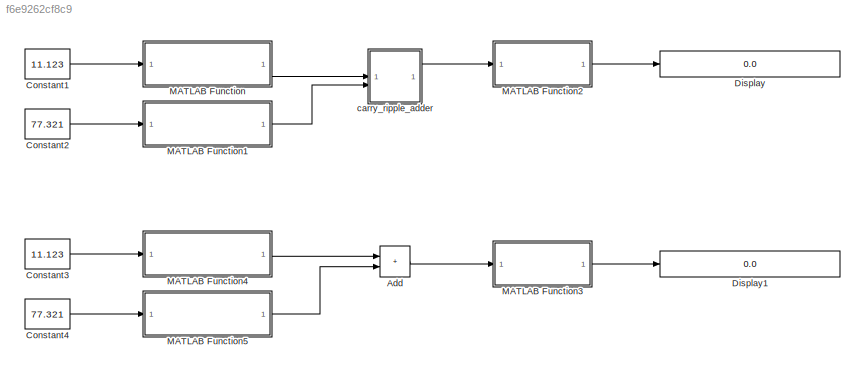
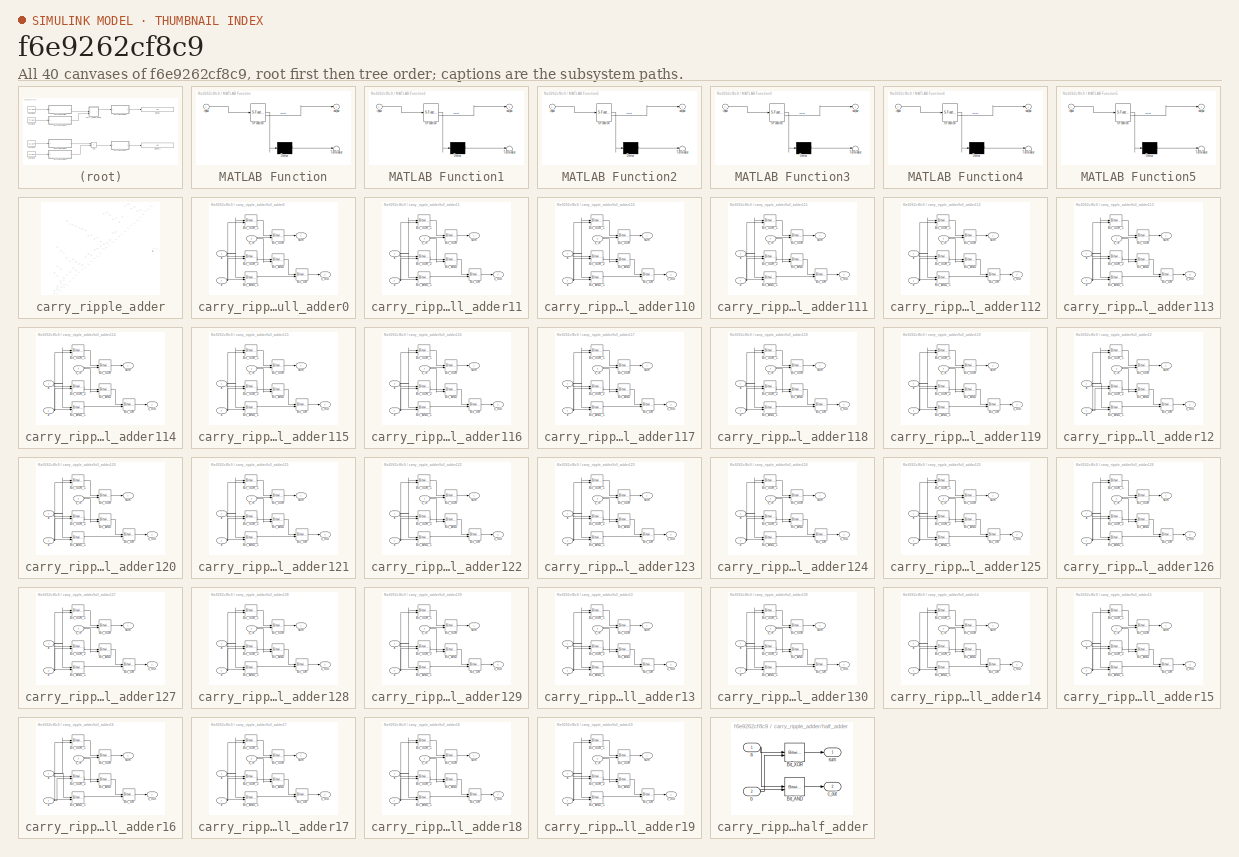
[diagram: thumbnail index - all 40 canvases of the model, root first then tree order]
MODEL slx_f6e9262cf8c9
KIND model
CONFIG AbsTol = auto
CONFIG EnableMultiTasking = off
CONFIG FixedStep = auto
CONFIG MaxStep = auto
CONFIG MinStep = auto
CONFIG PreLoadFcn = addpath('<path>');\n
CONFIG RelTol = 1e-3
CONFIG SampleTimeConstraint = Unconstrained
CONFIG SolverName = FixedStepDiscrete
CONFIG StartTime = 0.0
CONFIG StopTime = 10
BLOCK [Sum] Add
  IconShape = rectangular
BLOCK [Constant] Constant1
  OutDataTypeStr = fixdt(1,32,8)
  Value = 11.123
BLOCK [Constant] Constant2
  OutDataTypeStr = fixdt(1,32,8)
  Value = 77.321
BLOCK [Constant] Constant3
  OutDataTypeStr = fixdt(1,32,8)
  Value = 11.123
BLOCK [Constant] Constant4
  OutDataTypeStr = fixdt(1,32,8)
  Value = 77.321
BLOCK [Display] Display
  Decimation = 1
  Format = long
BLOCK [Display] Display1
  Decimation = 1
  Format = long
BLOCK [SubSystem] MATLAB Function
  ErrorFcn = Stateflow.Translate.translate
  LibrarySourceBlock = simulink/User-Defined\nFunctions/MATLAB Function
  PermitHierarchicalResolution = ExplicitOnly
  SFBlockType = MATLAB Function
  TreatAsAtomicUnit = on
BLOCK [Demux] MATLAB Function/ Demux 
  Outputs = 1
BLOCK [S-Function] MATLAB Function/ SFunction 
  EnableBusSupport = on
  FunctionName = sf_sfun
  PortCounts = [1 2]
  SFcnIsStateOwnerBlock = off
  SFunctionDeploymentMode = off
  Tag = Stateflow S-Function 2
BLOCK [Terminator] MATLAB Function/ Terminator 
BLOCK [Inport] MATLAB Function/input
BLOCK [Outport] MATLAB Function/output
BLOCK [SubSystem] MATLAB Function1
  ErrorFcn = Stateflow.Translate.translate
  LibrarySourceBlock = simulink/User-Defined\nFunctions/MATLAB Function
  PermitHierarchicalResolution = ExplicitOnly
  SFBlockType = MATLAB Function
  TreatAsAtomicUnit = on
BLOCK [Demux] MATLAB Function1/ Demux 
  Outputs = 1
BLOCK [S-Function] MATLAB Function1/ SFunction 
  EnableBusSupport = on
  FunctionName = sf_sfun
  PortCounts = [1 2]
  SFcnIsStateOwnerBlock = off
  SFunctionDeploymentMode = off
  Tag = Stateflow S-Function 1
BLOCK [Terminator] MATLAB Function1/ Terminator 
BLOCK [Inport] MATLAB Function1/input
BLOCK [Outport] MATLAB Function1/output
BLOCK [SubSystem] MATLAB Function2
  ErrorFcn = Stateflow.Translate.translate
  LibrarySourceBlock = simulink/User-Defined\nFunctions/MATLAB Function
  PermitHierarchicalResolution = ExplicitOnly
  SFBlockType = MATLAB Function
  TreatAsAtomicUnit = on
BLOCK [Demux] MATLAB Function2/ Demux 
  Outputs = 1
BLOCK [S-Function] MATLAB Function2/ SFunction 
  EnableBusSupport = on
  FunctionName = sf_sfun
  PortCounts = [1 2]
  SFcnIsStateOwnerBlock = off
  SFunctionDeploymentMode = off
  Tag = Stateflow S-Function 3
BLOCK [Terminator] MATLAB Function2/ Terminator 
BLOCK [Inport] MATLAB Function2/input
BLOCK [Outport] MATLAB Function2/output
BLOCK [SubSystem] MATLAB Function3
  ErrorFcn = Stateflow.Translate.translate
  LibrarySourceBlock = simulink/User-Defined\nFunctions/MATLAB Function
  PermitHierarchicalResolution = ExplicitOnly
  SFBlockType = MATLAB Function
  TreatAsAtomicUnit = on
BLOCK [Demux] MATLAB Function3/ Demux 
  Outputs = 1
BLOCK [S-Function] MATLAB Function3/ SFunction 
  EnableBusSupport = on
  FunctionName = sf_sfun
  PortCounts = [1 2]
  SFcnIsStateOwnerBlock = off
  SFunctionDeploymentMode = off
  Tag = Stateflow S-Function 4
BLOCK [Terminator] MATLAB Function3/ Terminator 
BLOCK [Inport] MATLAB Function3/input
BLOCK [Outport] MATLAB Function3/output
BLOCK [SubSystem] MATLAB Function4
  ErrorFcn = Stateflow.Translate.translate
  LibrarySourceBlock = simulink/User-Defined\nFunctions/MATLAB Function
  PermitHierarchicalResolution = ExplicitOnly
  SFBlockType = MATLAB Function
  TreatAsAtomicUnit = on
BLOCK [Demux] MATLAB Function4/ Demux 
  Outputs = 1
BLOCK [S-Function] MATLAB Function4/ SFunction 
  EnableBusSupport = on
  FunctionName = sf_sfun
  PortCounts = [1 2]
  SFcnIsStateOwnerBlock = off
  SFunctionDeploymentMode = off
  Tag = Stateflow S-Function 5
BLOCK [Terminator] MATLAB Function4/ Terminator 
BLOCK [Inport] MATLAB Function4/input
BLOCK [Outport] MATLAB Function4/output
BLOCK [SubSystem] MATLAB Function5
  ErrorFcn = Stateflow.Translate.translate
  LibrarySourceBlock = simulink/User-Defined\nFunctions/MATLAB Function
  PermitHierarchicalResolution = ExplicitOnly
  SFBlockType = MATLAB Function
  TreatAsAtomicUnit = on
BLOCK [Demux] MATLAB Function5/ Demux 
  Outputs = 1
BLOCK [S-Function] MATLAB Function5/ SFunction 
  EnableBusSupport = on
  FunctionName = sf_sfun
  PortCounts = [1 2]
  SFcnIsStateOwnerBlock = off
  SFunctionDeploymentMode = off
  Tag = Stateflow S-Function 6
BLOCK [Terminator] MATLAB Function5/ Terminator 
BLOCK [Inport] MATLAB Function5/input
BLOCK [Outport] MATLAB Function5/output
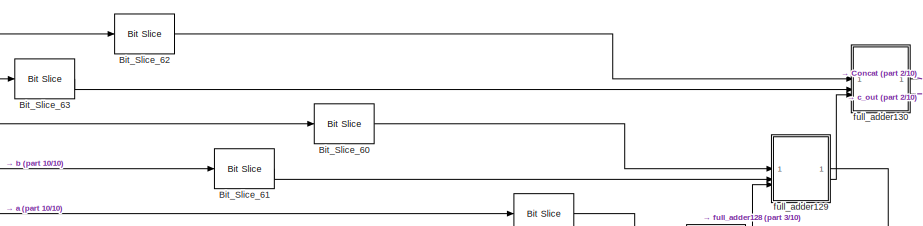
[diagram: carry_ripple_adder - part 1/10, top right region]
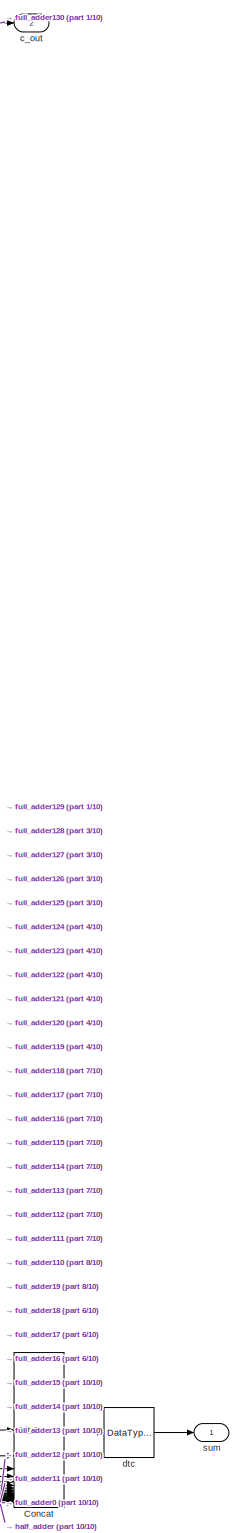
[diagram: carry_ripple_adder - part 2/10, top right region]
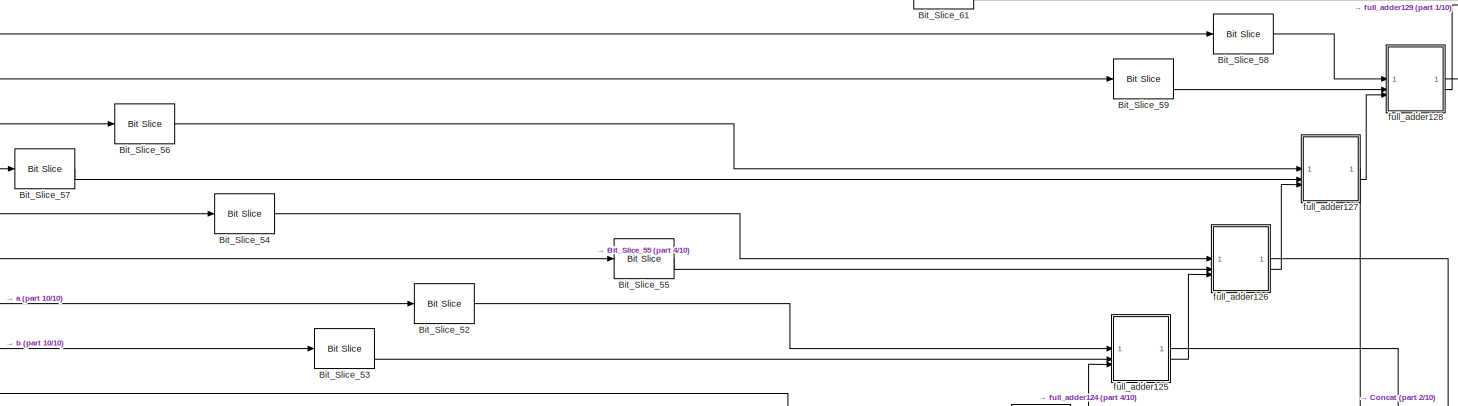
[diagram: carry_ripple_adder - part 3/10, top right region]
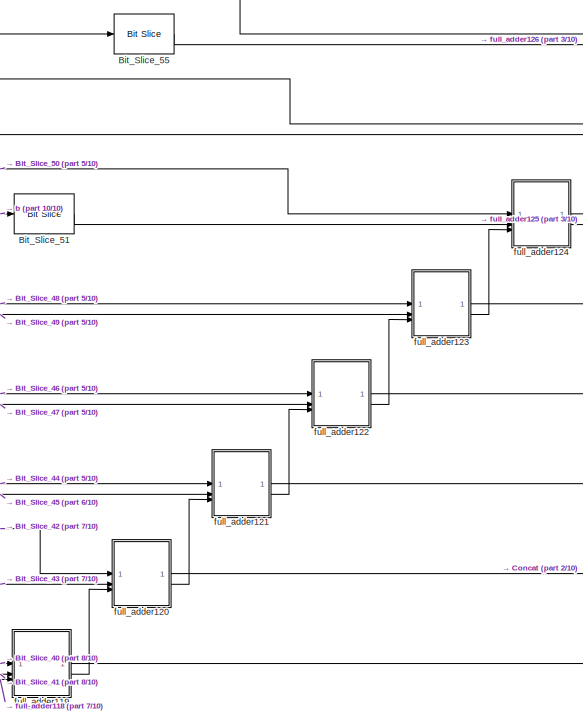
[diagram: carry_ripple_adder - part 4/10, top right region]
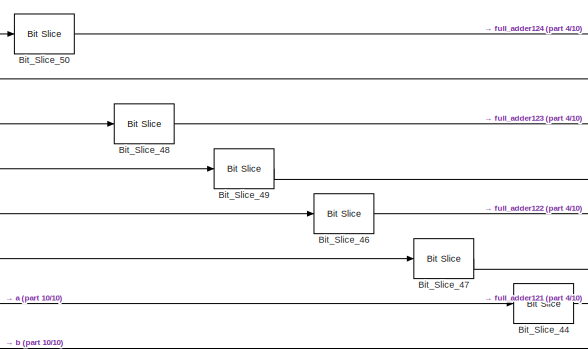
[diagram: carry_ripple_adder - part 5/10, top left region]
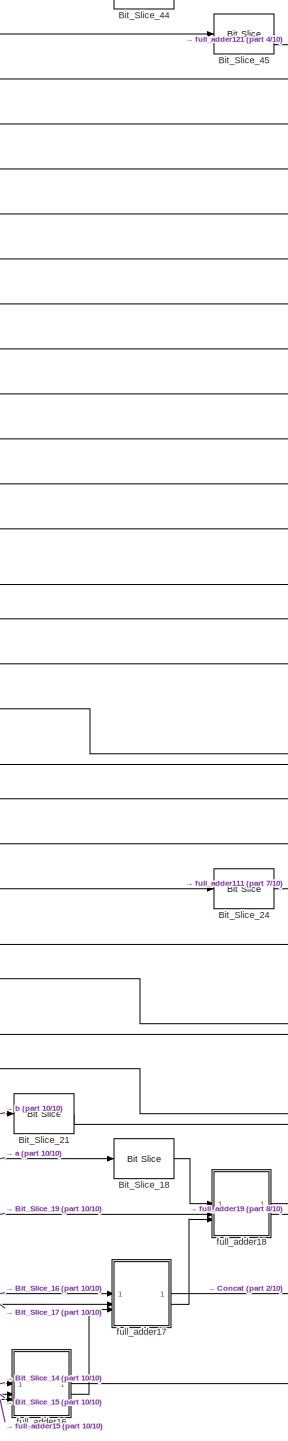
[diagram: carry_ripple_adder - part 6/10, central region]
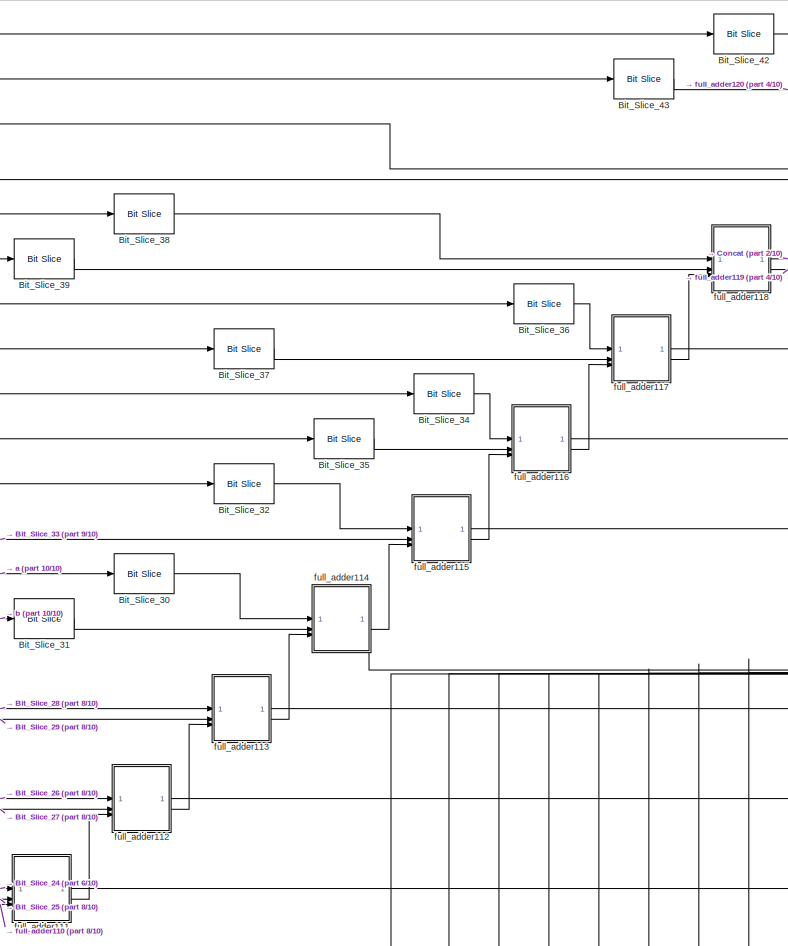
[diagram: carry_ripple_adder - part 7/10, central region]
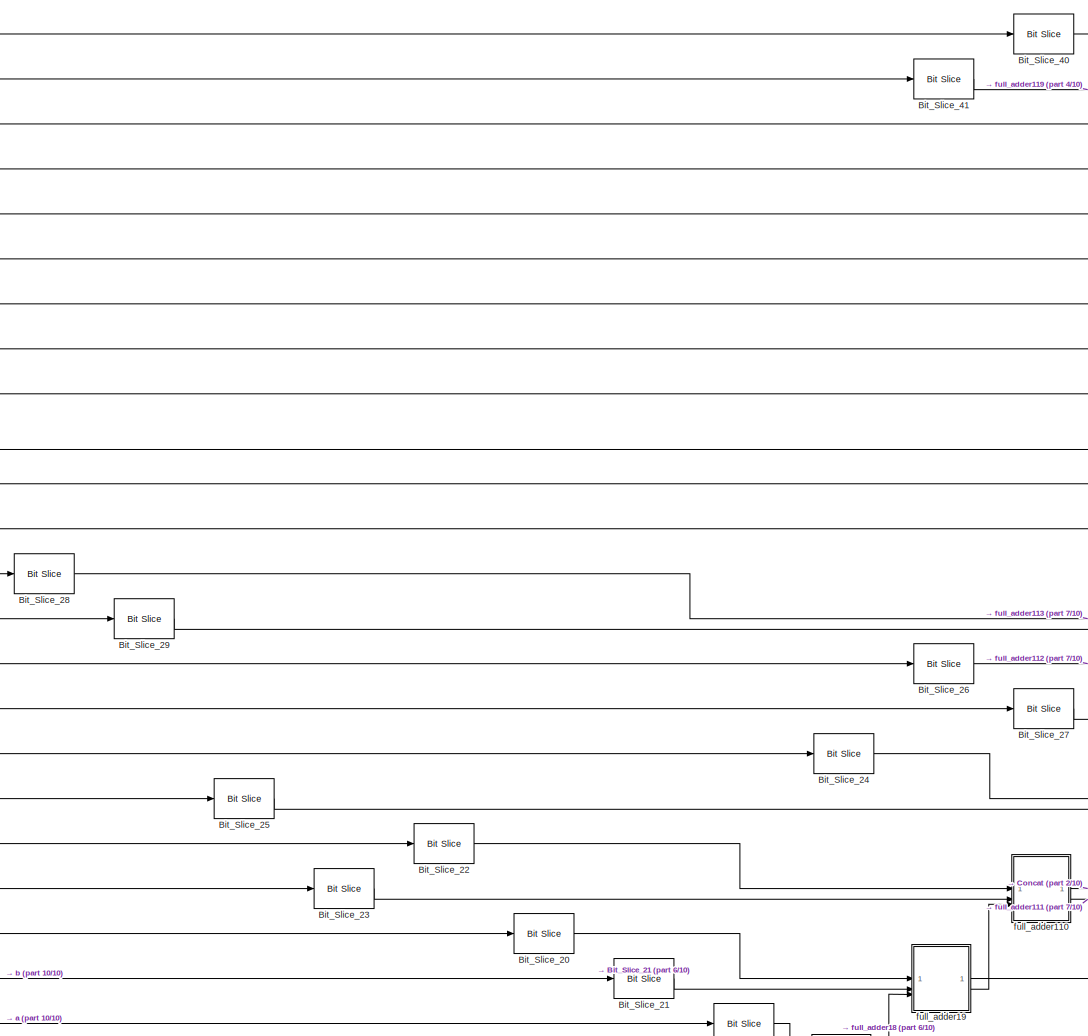
[diagram: carry_ripple_adder - part 8/10, middle left region]
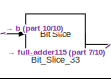
[diagram: carry_ripple_adder - part 9/10, middle left region]
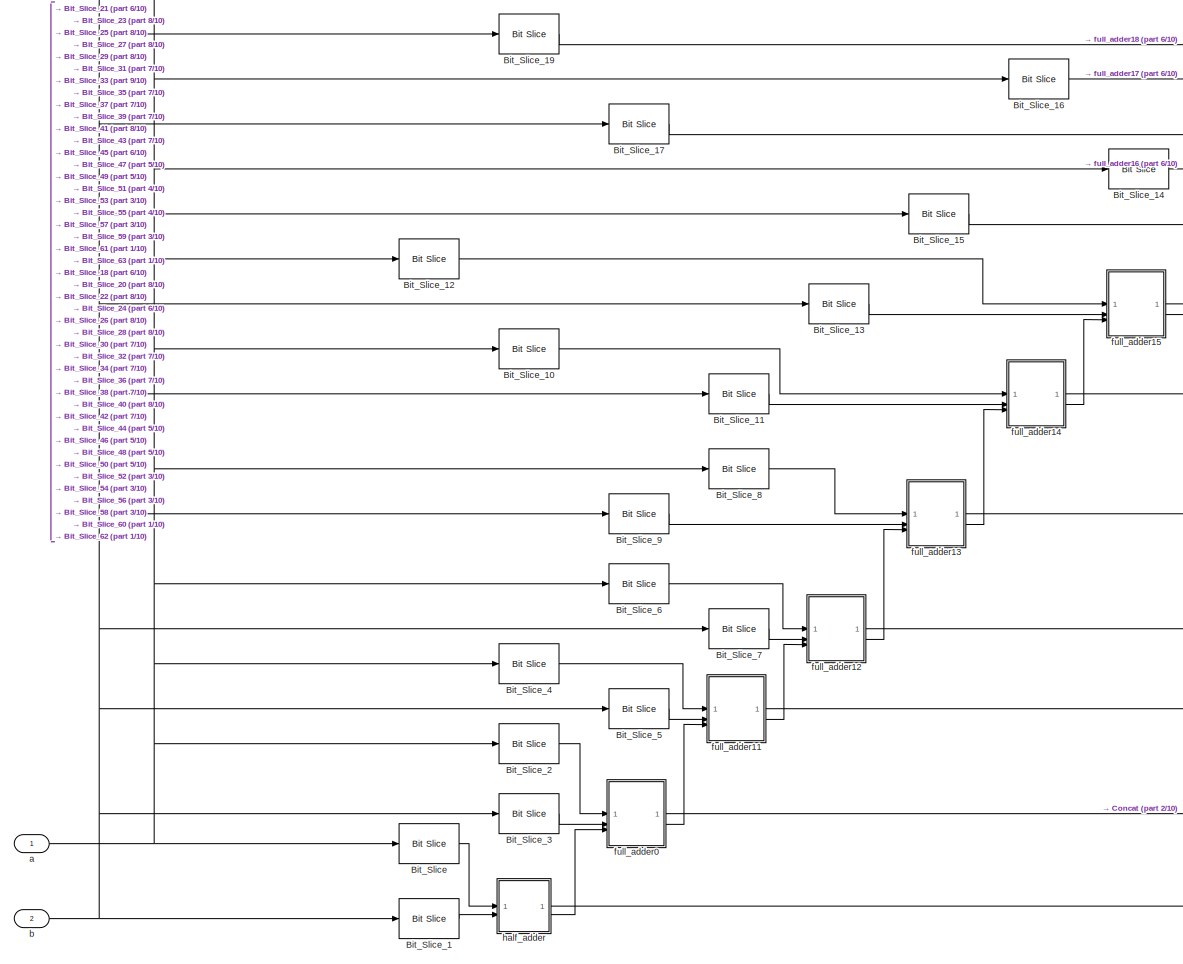
[diagram: carry_ripple_adder - part 10/10, bottom left region]
BLOCK [SubSystem] carry_ripple_adder
BLOCK [Reference] carry_ripple_adder/Bit_Slice  REF=hdlsllib/Logic and Bit
Operations/Bit Slice
  SourceBlock = hdlsllib/Logic and Bit\nOperations/Bit Slice
  SourceType = Bit Slice
BLOCK [Reference] carry_ripple_adder/Bit_Slice_1  REF=hdlsllib/Logic and Bit
Operations/Bit Slice
  SourceBlock = hdlsllib/Logic and Bit\nOperations/Bit Slice
  SourceType = Bit Slice
BLOCK [Reference] carry_ripple_adder/Bit_Slice_10  REF=hdlsllib/Logic and Bit
Operations/Bit Slice
  SourceBlock = hdlsllib/Logic and Bit\nOperations/Bit Slice
  SourceType = Bit Slice
BLOCK [Reference] carry_ripple_adder/Bit_Slice_11  REF=hdlsllib/Logic and Bit
Operations/Bit Slice
  SourceBlock = hdlsllib/Logic and Bit\nOperations/Bit Slice
  SourceType = Bit Slice
BLOCK [Reference] carry_ripple_adder/Bit_Slice_12  REF=hdlsllib/Logic and Bit
Operations/Bit Slice
  SourceBlock = hdlsllib/Logic and Bit\nOperations/Bit Slice
  SourceType = Bit Slice
BLOCK [Reference] carry_ripple_adder/Bit_Slice_13  REF=hdlsllib/Logic and Bit
Operations/Bit Slice
  SourceBlock = hdlsllib/Logic and Bit\nOperations/Bit Slice
  SourceType = Bit Slice
BLOCK [Reference] carry_ripple_adder/Bit_Slice_14  REF=hdlsllib/Logic and Bit
Operations/Bit Slice
  SourceBlock = hdlsllib/Logic and Bit\nOperations/Bit Slice
  SourceType = Bit Slice
BLOCK [Reference] carry_ripple_adder/Bit_Slice_15  REF=hdlsllib/Logic and Bit
Operations/Bit Slice
  SourceBlock = hdlsllib/Logic and Bit\nOperations/Bit Slice
  SourceType = Bit Slice
BLOCK [Reference] carry_ripple_adder/Bit_Slice_16  REF=hdlsllib/Logic and Bit
Operations/Bit Slice
  SourceBlock = hdlsllib/Logic and Bit\nOperations/Bit Slice
  SourceType = Bit Slice
BLOCK [Reference] carry_ripple_adder/Bit_Slice_17  REF=hdlsllib/Logic and Bit
Operations/Bit Slice
  SourceBlock = hdlsllib/Logic and Bit\nOperations/Bit Slice
  SourceType = Bit Slice
BLOCK [Reference] carry_ripple_adder/Bit_Slice_18  REF=hdlsllib/Logic and Bit
Operations/Bit Slice
  SourceBlock = hdlsllib/Logic and Bit\nOperations/Bit Slice
  SourceType = Bit Slice
BLOCK [Reference] carry_ripple_adder/Bit_Slice_19  REF=hdlsllib/Logic and Bit
Operations/Bit Slice
  SourceBlock = hdlsllib/Logic and Bit\nOperations/Bit Slice
  SourceType = Bit Slice
BLOCK [Reference] carry_ripple_adder/Bit_Slice_2  REF=hdlsllib/Logic and Bit
Operations/Bit Slice
  SourceBlock = hdlsllib/Logic and Bit\nOperations/Bit Slice
  SourceType = Bit Slice
BLOCK [Reference] carry_ripple_adder/Bit_Slice_20  REF=hdlsllib/Logic and Bit
Operations/Bit Slice
  SourceBlock = hdlsllib/Logic and Bit\nOperations/Bit Slice
  SourceType = Bit Slice
BLOCK [Reference] carry_ripple_adder/Bit_Slice_21  REF=hdlsllib/Logic and Bit
Operations/Bit Slice
  SourceBlock = hdlsllib/Logic and Bit\nOperations/Bit Slice
  SourceType = Bit Slice
BLOCK [Reference] carry_ripple_adder/Bit_Slice_22  REF=hdlsllib/Logic and Bit
Operations/Bit Slice
  SourceBlock = hdlsllib/Logic and Bit\nOperations/Bit Slice
  SourceType = Bit Slice
BLOCK [Reference] carry_ripple_adder/Bit_Slice_23  REF=hdlsllib/Logic and Bit
Operations/Bit Slice
  SourceBlock = hdlsllib/Logic and Bit\nOperations/Bit Slice
  SourceType = Bit Slice
BLOCK [Reference] carry_ripple_adder/Bit_Slice_24  REF=hdlsllib/Logic and Bit
Operations/Bit Slice
  SourceBlock = hdlsllib/Logic and Bit\nOperations/Bit Slice
  SourceType = Bit Slice
BLOCK [Reference] carry_ripple_adder/Bit_Slice_25  REF=hdlsllib/Logic and Bit
Operations/Bit Slice
  SourceBlock = hdlsllib/Logic and Bit\nOperations/Bit Slice
  SourceType = Bit Slice
BLOCK [Reference] carry_ripple_adder/Bit_Slice_26  REF=hdlsllib/Logic and Bit
Operations/Bit Slice
  SourceBlock = hdlsllib/Logic and Bit\nOperations/Bit Slice
  SourceType = Bit Slice
BLOCK [Reference] carry_ripple_adder/Bit_Slice_27  REF=hdlsllib/Logic and Bit
Operations/Bit Slice
  SourceBlock = hdlsllib/Logic and Bit\nOperations/Bit Slice
  SourceType = Bit Slice
BLOCK [Reference] carry_ripple_adder/Bit_Slice_28  REF=hdlsllib/Logic and Bit
Operations/Bit Slice
  SourceBlock = hdlsllib/Logic and Bit\nOperations/Bit Slice
  SourceType = Bit Slice
BLOCK [Reference] carry_ripple_adder/Bit_Slice_29  REF=hdlsllib/Logic and Bit
Operations/Bit Slice
  SourceBlock = hdlsllib/Logic and Bit\nOperations/Bit Slice
  SourceType = Bit Slice
BLOCK [Reference] carry_ripple_adder/Bit_Slice_3  REF=hdlsllib/Logic and Bit
Operations/Bit Slice
  SourceBlock = hdlsllib/Logic and Bit\nOperations/Bit Slice
  SourceType = Bit Slice
BLOCK [Reference] carry_ripple_adder/Bit_Slice_30  REF=hdlsllib/Logic and Bit
Operations/Bit Slice
  SourceBlock = hdlsllib/Logic and Bit\nOperations/Bit Slice
  SourceType = Bit Slice
BLOCK [Reference] carry_ripple_adder/Bit_Slice_31  REF=hdlsllib/Logic and Bit
Operations/Bit Slice
  SourceBlock = hdlsllib/Logic and Bit\nOperations/Bit Slice
  SourceType = Bit Slice
BLOCK [Reference] carry_ripple_adder/Bit_Slice_32  REF=hdlsllib/Logic and Bit
Operations/Bit Slice
  SourceBlock = hdlsllib/Logic and Bit\nOperations/Bit Slice
  SourceType = Bit Slice
BLOCK [Reference] carry_ripple_adder/Bit_Slice_33  REF=hdlsllib/Logic and Bit
Operations/Bit Slice
  SourceBlock = hdlsllib/Logic and Bit\nOperations/Bit Slice
  SourceType = Bit Slice
BLOCK [Reference] carry_ripple_adder/Bit_Slice_34  REF=hdlsllib/Logic and Bit
Operations/Bit Slice
  SourceBlock = hdlsllib/Logic and Bit\nOperations/Bit Slice
  SourceType = Bit Slice
BLOCK [Reference] carry_ripple_adder/Bit_Slice_35  REF=hdlsllib/Logic and Bit
Operations/Bit Slice
  SourceBlock = hdlsllib/Logic and Bit\nOperations/Bit Slice
  SourceType = Bit Slice
BLOCK [Reference] carry_ripple_adder/Bit_Slice_36  REF=hdlsllib/Logic and Bit
Operations/Bit Slice
  SourceBlock = hdlsllib/Logic and Bit\nOperations/Bit Slice
  SourceType = Bit Slice
BLOCK [Reference] carry_ripple_adder/Bit_Slice_37  REF=hdlsllib/Logic and Bit
Operations/Bit Slice
  SourceBlock = hdlsllib/Logic and Bit\nOperations/Bit Slice
  SourceType = Bit Slice
BLOCK [Reference] carry_ripple_adder/Bit_Slice_38  REF=hdlsllib/Logic and Bit
Operations/Bit Slice
  SourceBlock = hdlsllib/Logic and Bit\nOperations/Bit Slice
  SourceType = Bit Slice
BLOCK [Reference] carry_ripple_adder/Bit_Slice_39  REF=hdlsllib/Logic and Bit
Operations/Bit Slice
  SourceBlock = hdlsllib/Logic and Bit\nOperations/Bit Slice
  SourceType = Bit Slice
BLOCK [Reference] carry_ripple_adder/Bit_Slice_4  REF=hdlsllib/Logic and Bit
Operations/Bit Slice
  SourceBlock = hdlsllib/Logic and Bit\nOperations/Bit Slice
  SourceType = Bit Slice
BLOCK [Reference] carry_ripple_adder/Bit_Slice_40  REF=hdlsllib/Logic and Bit
Operations/Bit Slice
  SourceBlock = hdlsllib/Logic and Bit\nOperations/Bit Slice
  SourceType = Bit Slice
BLOCK [Reference] carry_ripple_adder/Bit_Slice_41  REF=hdlsllib/Logic and Bit
Operations/Bit Slice
  SourceBlock = hdlsllib/Logic and Bit\nOperations/Bit Slice
  SourceType = Bit Slice
BLOCK [Reference] carry_ripple_adder/Bit_Slice_42  REF=hdlsllib/Logic and Bit
Operations/Bit Slice
  SourceBlock = hdlsllib/Logic and Bit\nOperations/Bit Slice
  SourceType = Bit Slice
BLOCK [Reference] carry_ripple_adder/Bit_Slice_43  REF=hdlsllib/Logic and Bit
Operations/Bit Slice
  SourceBlock = hdlsllib/Logic and Bit\nOperations/Bit Slice
  SourceType = Bit Slice
BLOCK [Reference] carry_ripple_adder/Bit_Slice_44  REF=hdlsllib/Logic and Bit
Operations/Bit Slice
  SourceBlock = hdlsllib/Logic and Bit\nOperations/Bit Slice
  SourceType = Bit Slice
BLOCK [Reference] carry_ripple_adder/Bit_Slice_45  REF=hdlsllib/Logic and Bit
Operations/Bit Slice
  SourceBlock = hdlsllib/Logic and Bit\nOperations/Bit Slice
  SourceType = Bit Slice
BLOCK [Reference] carry_ripple_adder/Bit_Slice_46  REF=hdlsllib/Logic and Bit
Operations/Bit Slice
  SourceBlock = hdlsllib/Logic and Bit\nOperations/Bit Slice
  SourceType = Bit Slice
BLOCK [Reference] carry_ripple_adder/Bit_Slice_47  REF=hdlsllib/Logic and Bit
Operations/Bit Slice
  SourceBlock = hdlsllib/Logic and Bit\nOperations/Bit Slice
  SourceType = Bit Slice
BLOCK [Reference] carry_ripple_adder/Bit_Slice_48  REF=hdlsllib/Logic and Bit
Operations/Bit Slice
  SourceBlock = hdlsllib/Logic and Bit\nOperations/Bit Slice
  SourceType = Bit Slice
BLOCK [Reference] carry_ripple_adder/Bit_Slice_49  REF=hdlsllib/Logic and Bit
Operations/Bit Slice
  SourceBlock = hdlsllib/Logic and Bit\nOperations/Bit Slice
  SourceType = Bit Slice
BLOCK [Reference] carry_ripple_adder/Bit_Slice_5  REF=hdlsllib/Logic and Bit
Operations/Bit Slice
  SourceBlock = hdlsllib/Logic and Bit\nOperations/Bit Slice
  SourceType = Bit Slice
BLOCK [Reference] carry_ripple_adder/Bit_Slice_50  REF=hdlsllib/Logic and Bit
Operations/Bit Slice
  SourceBlock = hdlsllib/Logic and Bit\nOperations/Bit Slice
  SourceType = Bit Slice
BLOCK [Reference] carry_ripple_adder/Bit_Slice_51  REF=hdlsllib/Logic and Bit
Operations/Bit Slice
  SourceBlock = hdlsllib/Logic and Bit\nOperations/Bit Slice
  SourceType = Bit Slice
BLOCK [Reference] carry_ripple_adder/Bit_Slice_52  REF=hdlsllib/Logic and Bit
Operations/Bit Slice
  SourceBlock = hdlsllib/Logic and Bit\nOperations/Bit Slice
  SourceType = Bit Slice
BLOCK [Reference] carry_ripple_adder/Bit_Slice_53  REF=hdlsllib/Logic and Bit
Operations/Bit Slice
  SourceBlock = hdlsllib/Logic and Bit\nOperations/Bit Slice
  SourceType = Bit Slice
BLOCK [Reference] carry_ripple_adder/Bit_Slice_54  REF=hdlsllib/Logic and Bit
Operations/Bit Slice
  SourceBlock = hdlsllib/Logic and Bit\nOperations/Bit Slice
  SourceType = Bit Slice
BLOCK [Reference] carry_ripple_adder/Bit_Slice_55  REF=hdlsllib/Logic and Bit
Operations/Bit Slice
  SourceBlock = hdlsllib/Logic and Bit\nOperations/Bit Slice
  SourceType = Bit Slice
BLOCK [Reference] carry_ripple_adder/Bit_Slice_56  REF=hdlsllib/Logic and Bit
Operations/Bit Slice
  SourceBlock = hdlsllib/Logic and Bit\nOperations/Bit Slice
  SourceType = Bit Slice
BLOCK [Reference] carry_ripple_adder/Bit_Slice_57  REF=hdlsllib/Logic and Bit
Operations/Bit Slice
  SourceBlock = hdlsllib/Logic and Bit\nOperations/Bit Slice
  SourceType = Bit Slice
BLOCK [Reference] carry_ripple_adder/Bit_Slice_58  REF=hdlsllib/Logic and Bit
Operations/Bit Slice
  SourceBlock = hdlsllib/Logic and Bit\nOperations/Bit Slice
  SourceType = Bit Slice
BLOCK [Reference] carry_ripple_adder/Bit_Slice_59  REF=hdlsllib/Logic and Bit
Operations/Bit Slice
  SourceBlock = hdlsllib/Logic and Bit\nOperations/Bit Slice
  SourceType = Bit Slice
BLOCK [Reference] carry_ripple_adder/Bit_Slice_6  REF=hdlsllib/Logic and Bit
Operations/Bit Slice
  SourceBlock = hdlsllib/Logic and Bit\nOperations/Bit Slice
  SourceType = Bit Slice
BLOCK [Reference] carry_ripple_adder/Bit_Slice_60  REF=hdlsllib/Logic and Bit
Operations/Bit Slice
  SourceBlock = hdlsllib/Logic and Bit\nOperations/Bit Slice
  SourceType = Bit Slice
BLOCK [Reference] carry_ripple_adder/Bit_Slice_61  REF=hdlsllib/Logic and Bit
Operations/Bit Slice
  SourceBlock = hdlsllib/Logic and Bit\nOperations/Bit Slice
  SourceType = Bit Slice
BLOCK [Reference] carry_ripple_adder/Bit_Slice_62  REF=hdlsllib/Logic and Bit
Operations/Bit Slice
  SourceBlock = hdlsllib/Logic and Bit\nOperations/Bit Slice
  SourceType = Bit Slice
BLOCK [Reference] carry_ripple_adder/Bit_Slice_63  REF=hdlsllib/Logic and Bit
Operations/Bit Slice
  SourceBlock = hdlsllib/Logic and Bit\nOperations/Bit Slice
  SourceType = Bit Slice
BLOCK [Reference] carry_ripple_adder/Bit_Slice_7  REF=hdlsllib/Logic and Bit
Operations/Bit Slice
  SourceBlock = hdlsllib/Logic and Bit\nOperations/Bit Slice
  SourceType = Bit Slice
BLOCK [Reference] carry_ripple_adder/Bit_Slice_8  REF=hdlsllib/Logic and Bit
Operations/Bit Slice
  SourceBlock = hdlsllib/Logic and Bit\nOperations/Bit Slice
  SourceType = Bit Slice
BLOCK [Reference] carry_ripple_adder/Bit_Slice_9  REF=hdlsllib/Logic and Bit
Operations/Bit Slice
  SourceBlock = hdlsllib/Logic and Bit\nOperations/Bit Slice
  SourceType = Bit Slice
BLOCK [Reference] carry_ripple_adder/Concat  REF=hdlsllib/Logic and Bit
Operations/Bit Concat
  SourceBlock = hdlsllib/Logic and Bit\nOperations/Bit Concat
  SourceType = Bit Concat
BLOCK [Inport] carry_ripple_adder/a
  OutDataTypeStr = int32
  SampleTime = -1
BLOCK [Inport] carry_ripple_adder/b
  OutDataTypeStr = int32
  Port = 2
  SampleTime = -1
BLOCK [Outport] carry_ripple_adder/c_out
  OutDataTypeStr = fixdt(0, 1, 0)
  Port = 2
  SampleTime = -1
BLOCK [DataTypeConversion] carry_ripple_adder/dtc
  ConvertRealWorld = Stored Integer (SI)
  OutDataTypeStr = int32
  RndMeth = Floor
  SampleTime = -1
  SaturateOnIntegerOverflow = off
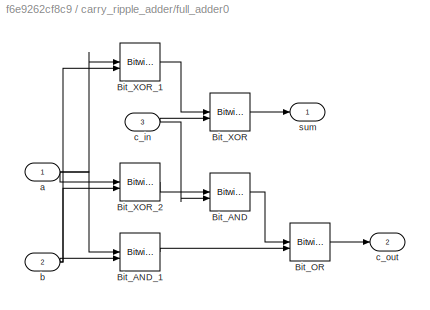
BLOCK [SubSystem] carry_ripple_adder/full_adder0
BLOCK [Reference] carry_ripple_adder/full_adder0/Bit_AND  REF=simulink/Logic and Bit
Operations/Bitwise
Operator
  SourceBlock = simulink/Logic and Bit\nOperations/Bitwise\nOperator
  SourceType = Bitwise Operator
BLOCK [Reference] carry_ripple_adder/full_adder0/Bit_AND_1  REF=simulink/Logic and Bit
Operations/Bitwise
Operator
  SourceBlock = simulink/Logic and Bit\nOperations/Bitwise\nOperator
  SourceType = Bitwise Operator
BLOCK [Reference] carry_ripple_adder/full_adder0/Bit_OR  REF=simulink/Logic and Bit
Operations/Bitwise
Operator
  SourceBlock = simulink/Logic and Bit\nOperations/Bitwise\nOperator
  SourceType = Bitwise Operator
BLOCK [Reference] carry_ripple_adder/full_adder0/Bit_XOR  REF=simulink/Logic and Bit
Operations/Bitwise
Operator
  SourceBlock = simulink/Logic and Bit\nOperations/Bitwise\nOperator
  SourceType = Bitwise Operator
BLOCK [Reference] carry_ripple_adder/full_adder0/Bit_XOR_1  REF=simulink/Logic and Bit
Operations/Bitwise
Operator
  SourceBlock = simulink/Logic and Bit\nOperations/Bitwise\nOperator
  SourceType = Bitwise Operator
BLOCK [Reference] carry_ripple_adder/full_adder0/Bit_XOR_2  REF=simulink/Logic and Bit
Operations/Bitwise
Operator
  SourceBlock = simulink/Logic and Bit\nOperations/Bitwise\nOperator
  SourceType = Bitwise Operator
BLOCK [Inport] carry_ripple_adder/full_adder0/a
  OutDataTypeStr = fixdt(0, 1, 0)
  SampleTime = -1
BLOCK [Inport] carry_ripple_adder/full_adder0/b
  OutDataTypeStr = fixdt(0, 1, 0)
  Port = 2
  SampleTime = -1
BLOCK [Inport] carry_ripple_adder/full_adder0/c_in
  OutDataTypeStr = fixdt(0, 1, 0)
  Port = 3
  SampleTime = -1
BLOCK [Outport] carry_ripple_adder/full_adder0/c_out
  OutDataTypeStr = fixdt(0, 1, 0)
  Port = 2
  SampleTime = -1
BLOCK [Outport] carry_ripple_adder/full_adder0/sum
  OutDataTypeStr = fixdt(0, 1, 0)
  SampleTime = -1
BLOCK [SubSystem] carry_ripple_adder/full_adder11
BLOCK [Reference] carry_ripple_adder/full_adder11/Bit_AND  REF=simulink/Logic and Bit
Operations/Bitwise
Operator
  SourceBlock = simulink/Logic and Bit\nOperations/Bitwise\nOperator
  SourceType = Bitwise Operator
BLOCK [Reference] carry_ripple_adder/full_adder11/Bit_AND_1  REF=simulink/Logic and Bit
Operations/Bitwise
Operator
  SourceBlock = simulink/Logic and Bit\nOperations/Bitwise\nOperator
  SourceType = Bitwise Operator
BLOCK [Reference] carry_ripple_adder/full_adder11/Bit_OR  REF=simulink/Logic and Bit
Operations/Bitwise
Operator
  SourceBlock = simulink/Logic and Bit\nOperations/Bitwise\nOperator
  SourceType = Bitwise Operator
BLOCK [Reference] carry_ripple_adder/full_adder11/Bit_XOR  REF=simulink/Logic and Bit
Operations/Bitwise
Operator
  SourceBlock = simulink/Logic and Bit\nOperations/Bitwise\nOperator
  SourceType = Bitwise Operator
BLOCK [Reference] carry_ripple_adder/full_adder11/Bit_XOR_1  REF=simulink/Logic and Bit
Operations/Bitwise
Operator
  SourceBlock = simulink/Logic and Bit\nOperations/Bitwise\nOperator
  SourceType = Bitwise Operator
BLOCK [Reference] carry_ripple_adder/full_adder11/Bit_XOR_2  REF=simulink/Logic and Bit
Operations/Bitwise
Operator
  SourceBlock = simulink/Logic and Bit\nOperations/Bitwise\nOperator
  SourceType = Bitwise Operator
BLOCK [Inport] carry_ripple_adder/full_adder11/a
  OutDataTypeStr = fixdt(0, 1, 0)
  SampleTime = -1
BLOCK [Inport] carry_ripple_adder/full_adder11/b
  OutDataTypeStr = fixdt(0, 1, 0)
  Port = 2
  SampleTime = -1
BLOCK [Inport] carry_ripple_adder/full_adder11/c_in
  OutDataTypeStr = fixdt(0, 1, 0)
  Port = 3
  SampleTime = -1
BLOCK [Outport] carry_ripple_adder/full_adder11/c_out
  OutDataTypeStr = fixdt(0, 1, 0)
  Port = 2
  SampleTime = -1
BLOCK [Outport] carry_ripple_adder/full_adder11/sum
  OutDataTypeStr = fixdt(0, 1, 0)
  SampleTime = -1
BLOCK [SubSystem] carry_ripple_adder/full_adder110
BLOCK [Reference] carry_ripple_adder/full_adder110/Bit_AND  REF=simulink/Logic and Bit
Operations/Bitwise
Operator
  SourceBlock = simulink/Logic and Bit\nOperations/Bitwise\nOperator
  SourceType = Bitwise Operator
BLOCK [Reference] carry_ripple_adder/full_adder110/Bit_AND_1  REF=simulink/Logic and Bit
Operations/Bitwise
Operator
  SourceBlock = simulink/Logic and Bit\nOperations/Bitwise\nOperator
  SourceType = Bitwise Operator
BLOCK [Reference] carry_ripple_adder/full_adder110/Bit_OR  REF=simulink/Logic and Bit
Operations/Bitwise
Operator
  SourceBlock = simulink/Logic and Bit\nOperations/Bitwise\nOperator
  SourceType = Bitwise Operator
BLOCK [Reference] carry_ripple_adder/full_adder110/Bit_XOR  REF=simulink/Logic and Bit
Operations/Bitwise
Operator
  SourceBlock = simulink/Logic and Bit\nOperations/Bitwise\nOperator
  SourceType = Bitwise Operator
BLOCK [Reference] carry_ripple_adder/full_adder110/Bit_XOR_1  REF=simulink/Logic and Bit
Operations/Bitwise
Operator
  SourceBlock = simulink/Logic and Bit\nOperations/Bitwise\nOperator
  SourceType = Bitwise Operator
BLOCK [Reference] carry_ripple_adder/full_adder110/Bit_XOR_2  REF=simulink/Logic and Bit
Operations/Bitwise
Operator
  SourceBlock = simulink/Logic and Bit\nOperations/Bitwise\nOperator
  SourceType = Bitwise Operator
BLOCK [Inport] carry_ripple_adder/full_adder110/a
  OutDataTypeStr = fixdt(0, 1, 0)
  SampleTime = -1
BLOCK [Inport] carry_ripple_adder/full_adder110/b
  OutDataTypeStr = fixdt(0, 1, 0)
  Port = 2
  SampleTime = -1
BLOCK [Inport] carry_ripple_adder/full_adder110/c_in
  OutDataTypeStr = fixdt(0, 1, 0)
  Port = 3
  SampleTime = -1
BLOCK [Outport] carry_ripple_adder/full_adder110/c_out
  OutDataTypeStr = fixdt(0, 1, 0)
  Port = 2
  SampleTime = -1
BLOCK [Outport] carry_ripple_adder/full_adder110/sum
  OutDataTypeStr = fixdt(0, 1, 0)
  SampleTime = -1
BLOCK [SubSystem] carry_ripple_adder/full_adder111
BLOCK [Reference] carry_ripple_adder/full_adder111/Bit_AND  REF=simulink/Logic and Bit
Operations/Bitwise
Operator
  SourceBlock = simulink/Logic and Bit\nOperations/Bitwise\nOperator
  SourceType = Bitwise Operator
BLOCK [Reference] carry_ripple_adder/full_adder111/Bit_AND_1  REF=simulink/Logic and Bit
Operations/Bitwise
Operator
  SourceBlock = simulink/Logic and Bit\nOperations/Bitwise\nOperator
  SourceType = Bitwise Operator
BLOCK [Reference] carry_ripple_adder/full_adder111/Bit_OR  REF=simulink/Logic and Bit
Operations/Bitwise
Operator
  SourceBlock = simulink/Logic and Bit\nOperations/Bitwise\nOperator
  SourceType = Bitwise Operator
BLOCK [Reference] carry_ripple_adder/full_adder111/Bit_XOR  REF=simulink/Logic and Bit
Operations/Bitwise
Operator
  SourceBlock = simulink/Logic and Bit\nOperations/Bitwise\nOperator
  SourceType = Bitwise Operator
BLOCK [Reference] carry_ripple_adder/full_adder111/Bit_XOR_1  REF=simulink/Logic and Bit
Operations/Bitwise
Operator
  SourceBlock = simulink/Logic and Bit\nOperations/Bitwise\nOperator
  SourceType = Bitwise Operator
BLOCK [Reference] carry_ripple_adder/full_adder111/Bit_XOR_2  REF=simulink/Logic and Bit
Operations/Bitwise
Operator
  SourceBlock = simulink/Logic and Bit\nOperations/Bitwise\nOperator
  SourceType = Bitwise Operator
BLOCK [Inport] carry_ripple_adder/full_adder111/a
  OutDataTypeStr = fixdt(0, 1, 0)
  SampleTime = -1
BLOCK [Inport] carry_ripple_adder/full_adder111/b
  OutDataTypeStr = fixdt(0, 1, 0)
  Port = 2
  SampleTime = -1
BLOCK [Inport] carry_ripple_adder/full_adder111/c_in
  OutDataTypeStr = fixdt(0, 1, 0)
  Port = 3
  SampleTime = -1
BLOCK [Outport] carry_ripple_adder/full_adder111/c_out
  OutDataTypeStr = fixdt(0, 1, 0)
  Port = 2
  SampleTime = -1
BLOCK [Outport] carry_ripple_adder/full_adder111/sum
  OutDataTypeStr = fixdt(0, 1, 0)
  SampleTime = -1
BLOCK [SubSystem] carry_ripple_adder/full_adder112
BLOCK [Reference] carry_ripple_adder/full_adder112/Bit_AND  REF=simulink/Logic and Bit
Operations/Bitwise
Operator
  SourceBlock = simulink/Logic and Bit\nOperations/Bitwise\nOperator
  SourceType = Bitwise Operator
BLOCK [Reference] carry_ripple_adder/full_adder112/Bit_AND_1  REF=simulink/Logic and Bit
Operations/Bitwise
Operator
  SourceBlock = simulink/Logic and Bit\nOperations/Bitwise\nOperator
  SourceType = Bitwise Operator
BLOCK [Reference] carry_ripple_adder/full_adder112/Bit_OR  REF=simulink/Logic and Bit
Operations/Bitwise
Operator
  SourceBlock = simulink/Logic and Bit\nOperations/Bitwise\nOperator
  SourceType = Bitwise Operator
BLOCK [Reference] carry_ripple_adder/full_adder112/Bit_XOR  REF=simulink/Logic and Bit
Operations/Bitwise
Operator
  SourceBlock = simulink/Logic and Bit\nOperations/Bitwise\nOperator
  SourceType = Bitwise Operator
BLOCK [Reference] carry_ripple_adder/full_adder112/Bit_XOR_1  REF=simulink/Logic and Bit
Operations/Bitwise
Operator
  SourceBlock = simulink/Logic and Bit\nOperations/Bitwise\nOperator
  SourceType = Bitwise Operator
BLOCK [Reference] carry_ripple_adder/full_adder112/Bit_XOR_2  REF=simulink/Logic and Bit
Operations/Bitwise
Operator
  SourceBlock = simulink/Logic and Bit\nOperations/Bitwise\nOperator
  SourceType = Bitwise Operator
BLOCK [Inport] carry_ripple_adder/full_adder112/a
  OutDataTypeStr = fixdt(0, 1, 0)
  SampleTime = -1
BLOCK [Inport] carry_ripple_adder/full_adder112/b
  OutDataTypeStr = fixdt(0, 1, 0)
  Port = 2
  SampleTime = -1
BLOCK [Inport] carry_ripple_adder/full_adder112/c_in
  OutDataTypeStr = fixdt(0, 1, 0)
  Port = 3
  SampleTime = -1
BLOCK [Outport] carry_ripple_adder/full_adder112/c_out
  OutDataTypeStr = fixdt(0, 1, 0)
  Port = 2
  SampleTime = -1
BLOCK [Outport] carry_ripple_adder/full_adder112/sum
  OutDataTypeStr = fixdt(0, 1, 0)
  SampleTime = -1
BLOCK [SubSystem] carry_ripple_adder/full_adder113
BLOCK [Reference] carry_ripple_adder/full_adder113/Bit_AND  REF=simulink/Logic and Bit
Operations/Bitwise
Operator
  SourceBlock = simulink/Logic and Bit\nOperations/Bitwise\nOperator
  SourceType = Bitwise Operator
BLOCK [Reference] carry_ripple_adder/full_adder113/Bit_AND_1  REF=simulink/Logic and Bit
Operations/Bitwise
Operator
  SourceBlock = simulink/Logic and Bit\nOperations/Bitwise\nOperator
  SourceType = Bitwise Operator
BLOCK [Reference] carry_ripple_adder/full_adder113/Bit_OR  REF=simulink/Logic and Bit
Operations/Bitwise
Operator
  SourceBlock = simulink/Logic and Bit\nOperations/Bitwise\nOperator
  SourceType = Bitwise Operator
BLOCK [Reference] carry_ripple_adder/full_adder113/Bit_XOR  REF=simulink/Logic and Bit
Operations/Bitwise
Operator
  SourceBlock = simulink/Logic and Bit\nOperations/Bitwise\nOperator
  SourceType = Bitwise Operator
BLOCK [Reference] carry_ripple_adder/full_adder113/Bit_XOR_1  REF=simulink/Logic and Bit
Operations/Bitwise
Operator
  SourceBlock = simulink/Logic and Bit\nOperations/Bitwise\nOperator
  SourceType = Bitwise Operator
BLOCK [Reference] carry_ripple_adder/full_adder113/Bit_XOR_2  REF=simulink/Logic and Bit
Operations/Bitwise
Operator
  SourceBlock = simulink/Logic and Bit\nOperations/Bitwise\nOperator
  SourceType = Bitwise Operator
BLOCK [Inport] carry_ripple_adder/full_adder113/a
  OutDataTypeStr = fixdt(0, 1, 0)
  SampleTime = -1
BLOCK [Inport] carry_ripple_adder/full_adder113/b
  OutDataTypeStr = fixdt(0, 1, 0)
  Port = 2
  SampleTime = -1
BLOCK [Inport] carry_ripple_adder/full_adder113/c_in
  OutDataTypeStr = fixdt(0, 1, 0)
  Port = 3
  SampleTime = -1
BLOCK [Outport] carry_ripple_adder/full_adder113/c_out
  OutDataTypeStr = fixdt(0, 1, 0)
  Port = 2
  SampleTime = -1
BLOCK [Outport] carry_ripple_adder/full_adder113/sum
  OutDataTypeStr = fixdt(0, 1, 0)
  SampleTime = -1
BLOCK [SubSystem] carry_ripple_adder/full_adder114
BLOCK [Reference] carry_ripple_adder/full_adder114/Bit_AND  REF=simulink/Logic and Bit
Operations/Bitwise
Operator
  SourceBlock = simulink/Logic and Bit\nOperations/Bitwise\nOperator
  SourceType = Bitwise Operator
BLOCK [Reference] carry_ripple_adder/full_adder114/Bit_AND_1  REF=simulink/Logic and Bit
Operations/Bitwise
Operator
  SourceBlock = simulink/Logic and Bit\nOperations/Bitwise\nOperator
  SourceType = Bitwise Operator
BLOCK [Reference] carry_ripple_adder/full_adder114/Bit_OR  REF=simulink/Logic and Bit
Operations/Bitwise
Operator
  SourceBlock = simulink/Logic and Bit\nOperations/Bitwise\nOperator
  SourceType = Bitwise Operator
BLOCK [Reference] carry_ripple_adder/full_adder114/Bit_XOR  REF=simulink/Logic and Bit
Operations/Bitwise
Operator
  SourceBlock = simulink/Logic and Bit\nOperations/Bitwise\nOperator
  SourceType = Bitwise Operator
BLOCK [Reference] carry_ripple_adder/full_adder114/Bit_XOR_1  REF=simulink/Logic and Bit
Operations/Bitwise
Operator
  SourceBlock = simulink/Logic and Bit\nOperations/Bitwise\nOperator
  SourceType = Bitwise Operator
BLOCK [Reference] carry_ripple_adder/full_adder114/Bit_XOR_2  REF=simulink/Logic and Bit
Operations/Bitwise
Operator
  SourceBlock = simulink/Logic and Bit\nOperations/Bitwise\nOperator
  SourceType = Bitwise Operator
BLOCK [Inport] carry_ripple_adder/full_adder114/a
  OutDataTypeStr = fixdt(0, 1, 0)
  SampleTime = -1
BLOCK [Inport] carry_ripple_adder/full_adder114/b
  OutDataTypeStr = fixdt(0, 1, 0)
  Port = 2
  SampleTime = -1
BLOCK [Inport] carry_ripple_adder/full_adder114/c_in
  OutDataTypeStr = fixdt(0, 1, 0)
  Port = 3
  SampleTime = -1
BLOCK [Outport] carry_ripple_adder/full_adder114/c_out
  OutDataTypeStr = fixdt(0, 1, 0)
  Port = 2
  SampleTime = -1
BLOCK [Outport] carry_ripple_adder/full_adder114/sum
  OutDataTypeStr = fixdt(0, 1, 0)
  SampleTime = -1
BLOCK [SubSystem] carry_ripple_adder/full_adder115
BLOCK [Reference] carry_ripple_adder/full_adder115/Bit_AND  REF=simulink/Logic and Bit
Operations/Bitwise
Operator
  SourceBlock = simulink/Logic and Bit\nOperations/Bitwise\nOperator
  SourceType = Bitwise Operator
BLOCK [Reference] carry_ripple_adder/full_adder115/Bit_AND_1  REF=simulink/Logic and Bit
Operations/Bitwise
Operator
  SourceBlock = simulink/Logic and Bit\nOperations/Bitwise\nOperator
  SourceType = Bitwise Operator
BLOCK [Reference] carry_ripple_adder/full_adder115/Bit_OR  REF=simulink/Logic and Bit
Operations/Bitwise
Operator
  SourceBlock = simulink/Logic and Bit\nOperations/Bitwise\nOperator
  SourceType = Bitwise Operator
BLOCK [Reference] carry_ripple_adder/full_adder115/Bit_XOR  REF=simulink/Logic and Bit
Operations/Bitwise
Operator
  SourceBlock = simulink/Logic and Bit\nOperations/Bitwise\nOperator
  SourceType = Bitwise Operator
BLOCK [Reference] carry_ripple_adder/full_adder115/Bit_XOR_1  REF=simulink/Logic and Bit
Operations/Bitwise
Operator
  SourceBlock = simulink/Logic and Bit\nOperations/Bitwise\nOperator
  SourceType = Bitwise Operator
BLOCK [Reference] carry_ripple_adder/full_adder115/Bit_XOR_2  REF=simulink/Logic and Bit
Operations/Bitwise
Operator
  SourceBlock = simulink/Logic and Bit\nOperations/Bitwise\nOperator
  SourceType = Bitwise Operator
BLOCK [Inport] carry_ripple_adder/full_adder115/a
  OutDataTypeStr = fixdt(0, 1, 0)
  SampleTime = -1
BLOCK [Inport] carry_ripple_adder/full_adder115/b
  OutDataTypeStr = fixdt(0, 1, 0)
  Port = 2
  SampleTime = -1
BLOCK [Inport] carry_ripple_adder/full_adder115/c_in
  OutDataTypeStr = fixdt(0, 1, 0)
  Port = 3
  SampleTime = -1
BLOCK [Outport] carry_ripple_adder/full_adder115/c_out
  OutDataTypeStr = fixdt(0, 1, 0)
  Port = 2
  SampleTime = -1
BLOCK [Outport] carry_ripple_adder/full_adder115/sum
  OutDataTypeStr = fixdt(0, 1, 0)
  SampleTime = -1
BLOCK [SubSystem] carry_ripple_adder/full_adder116
BLOCK [Reference] carry_ripple_adder/full_adder116/Bit_AND  REF=simulink/Logic and Bit
Operations/Bitwise
Operator
  SourceBlock = simulink/Logic and Bit\nOperations/Bitwise\nOperator
  SourceType = Bitwise Operator
BLOCK [Reference] carry_ripple_adder/full_adder116/Bit_AND_1  REF=simulink/Logic and Bit
Operations/Bitwise
Operator
  SourceBlock = simulink/Logic and Bit\nOperations/Bitwise\nOperator
  SourceType = Bitwise Operator
BLOCK [Reference] carry_ripple_adder/full_adder116/Bit_OR  REF=simulink/Logic and Bit
Operations/Bitwise
Operator
  SourceBlock = simulink/Logic and Bit\nOperations/Bitwise\nOperator
  SourceType = Bitwise Operator
BLOCK [Reference] carry_ripple_adder/full_adder116/Bit_XOR  REF=simulink/Logic and Bit
Operations/Bitwise
Operator
  SourceBlock = simulink/Logic and Bit\nOperations/Bitwise\nOperator
  SourceType = Bitwise Operator
BLOCK [Reference] carry_ripple_adder/full_adder116/Bit_XOR_1  REF=simulink/Logic and Bit
Operations/Bitwise
Operator
  SourceBlock = simulink/Logic and Bit\nOperations/Bitwise\nOperator
  SourceType = Bitwise Operator
BLOCK [Reference] carry_ripple_adder/full_adder116/Bit_XOR_2  REF=simulink/Logic and Bit
Operations/Bitwise
Operator
  SourceBlock = simulink/Logic and Bit\nOperations/Bitwise\nOperator
  SourceType = Bitwise Operator
BLOCK [Inport] carry_ripple_adder/full_adder116/a
  OutDataTypeStr = fixdt(0, 1, 0)
  SampleTime = -1
BLOCK [Inport] carry_ripple_adder/full_adder116/b
  OutDataTypeStr = fixdt(0, 1, 0)
  Port = 2
  SampleTime = -1
BLOCK [Inport] carry_ripple_adder/full_adder116/c_in
  OutDataTypeStr = fixdt(0, 1, 0)
  Port = 3
  SampleTime = -1
BLOCK [Outport] carry_ripple_adder/full_adder116/c_out
  OutDataTypeStr = fixdt(0, 1, 0)
  Port = 2
  SampleTime = -1
BLOCK [Outport] carry_ripple_adder/full_adder116/sum
  OutDataTypeStr = fixdt(0, 1, 0)
  SampleTime = -1
BLOCK [SubSystem] carry_ripple_adder/full_adder117
BLOCK [Reference] carry_ripple_adder/full_adder117/Bit_AND  REF=simulink/Logic and Bit
Operations/Bitwise
Operator
  SourceBlock = simulink/Logic and Bit\nOperations/Bitwise\nOperator
  SourceType = Bitwise Operator
BLOCK [Reference] carry_ripple_adder/full_adder117/Bit_AND_1  REF=simulink/Logic and Bit
Operations/Bitwise
Operator
  SourceBlock = simulink/Logic and Bit\nOperations/Bitwise\nOperator
  SourceType = Bitwise Operator
BLOCK [Reference] carry_ripple_adder/full_adder117/Bit_OR  REF=simulink/Logic and Bit
Operations/Bitwise
Operator
  SourceBlock = simulink/Logic and Bit\nOperations/Bitwise\nOperator
  SourceType = Bitwise Operator
BLOCK [Reference] carry_ripple_adder/full_adder117/Bit_XOR  REF=simulink/Logic and Bit
Operations/Bitwise
Operator
  SourceBlock = simulink/Logic and Bit\nOperations/Bitwise\nOperator
  SourceType = Bitwise Operator
BLOCK [Reference] carry_ripple_adder/full_adder117/Bit_XOR_1  REF=simulink/Logic and Bit
Operations/Bitwise
Operator
  SourceBlock = simulink/Logic and Bit\nOperations/Bitwise\nOperator
  SourceType = Bitwise Operator
BLOCK [Reference] carry_ripple_adder/full_adder117/Bit_XOR_2  REF=simulink/Logic and Bit
Operations/Bitwise
Operator
  SourceBlock = simulink/Logic and Bit\nOperations/Bitwise\nOperator
  SourceType = Bitwise Operator
BLOCK [Inport] carry_ripple_adder/full_adder117/a
  OutDataTypeStr = fixdt(0, 1, 0)
  SampleTime = -1
BLOCK [Inport] carry_ripple_adder/full_adder117/b
  OutDataTypeStr = fixdt(0, 1, 0)
  Port = 2
  SampleTime = -1
BLOCK [Inport] carry_ripple_adder/full_adder117/c_in
  OutDataTypeStr = fixdt(0, 1, 0)
  Port = 3
  SampleTime = -1
BLOCK [Outport] carry_ripple_adder/full_adder117/c_out
  OutDataTypeStr = fixdt(0, 1, 0)
  Port = 2
  SampleTime = -1
BLOCK [Outport] carry_ripple_adder/full_adder117/sum
  OutDataTypeStr = fixdt(0, 1, 0)
  SampleTime = -1
BLOCK [SubSystem] carry_ripple_adder/full_adder118
BLOCK [Reference] carry_ripple_adder/full_adder118/Bit_AND  REF=simulink/Logic and Bit
Operations/Bitwise
Operator
  SourceBlock = simulink/Logic and Bit\nOperations/Bitwise\nOperator
  SourceType = Bitwise Operator
BLOCK [Reference] carry_ripple_adder/full_adder118/Bit_AND_1  REF=simulink/Logic and Bit
Operations/Bitwise
Operator
  SourceBlock = simulink/Logic and Bit\nOperations/Bitwise\nOperator
  SourceType = Bitwise Operator
BLOCK [Reference] carry_ripple_adder/full_adder118/Bit_OR  REF=simulink/Logic and Bit
Operations/Bitwise
Operator
  SourceBlock = simulink/Logic and Bit\nOperations/Bitwise\nOperator
  SourceType = Bitwise Operator
BLOCK [Reference] carry_ripple_adder/full_adder118/Bit_XOR  REF=simulink/Logic and Bit
Operations/Bitwise
Operator
  SourceBlock = simulink/Logic and Bit\nOperations/Bitwise\nOperator
  SourceType = Bitwise Operator
BLOCK [Reference] carry_ripple_adder/full_adder118/Bit_XOR_1  REF=simulink/Logic and Bit
Operations/Bitwise
Operator
  SourceBlock = simulink/Logic and Bit\nOperations/Bitwise\nOperator
  SourceType = Bitwise Operator
BLOCK [Reference] carry_ripple_adder/full_adder118/Bit_XOR_2  REF=simulink/Logic and Bit
Operations/Bitwise
Operator
  SourceBlock = simulink/Logic and Bit\nOperations/Bitwise\nOperator
  SourceType = Bitwise Operator
BLOCK [Inport] carry_ripple_adder/full_adder118/a
  OutDataTypeStr = fixdt(0, 1, 0)
  SampleTime = -1
BLOCK [Inport] carry_ripple_adder/full_adder118/b
  OutDataTypeStr = fixdt(0, 1, 0)
  Port = 2
  SampleTime = -1
BLOCK [Inport] carry_ripple_adder/full_adder118/c_in
  OutDataTypeStr = fixdt(0, 1, 0)
  Port = 3
  SampleTime = -1
BLOCK [Outport] carry_ripple_adder/full_adder118/c_out
  OutDataTypeStr = fixdt(0, 1, 0)
  Port = 2
  SampleTime = -1
BLOCK [Outport] carry_ripple_adder/full_adder118/sum
  OutDataTypeStr = fixdt(0, 1, 0)
  SampleTime = -1
BLOCK [SubSystem] carry_ripple_adder/full_adder119
BLOCK [Reference] carry_ripple_adder/full_adder119/Bit_AND  REF=simulink/Logic and Bit
Operations/Bitwise
Operator
  SourceBlock = simulink/Logic and Bit\nOperations/Bitwise\nOperator
  SourceType = Bitwise Operator
BLOCK [Reference] carry_ripple_adder/full_adder119/Bit_AND_1  REF=simulink/Logic and Bit
Operations/Bitwise
Operator
  SourceBlock = simulink/Logic and Bit\nOperations/Bitwise\nOperator
  SourceType = Bitwise Operator
BLOCK [Reference] carry_ripple_adder/full_adder119/Bit_OR  REF=simulink/Logic and Bit
Operations/Bitwise
Operator
  SourceBlock = simulink/Logic and Bit\nOperations/Bitwise\nOperator
  SourceType = Bitwise Operator
BLOCK [Reference] carry_ripple_adder/full_adder119/Bit_XOR  REF=simulink/Logic and Bit
Operations/Bitwise
Operator
  SourceBlock = simulink/Logic and Bit\nOperations/Bitwise\nOperator
  SourceType = Bitwise Operator
BLOCK [Reference] carry_ripple_adder/full_adder119/Bit_XOR_1  REF=simulink/Logic and Bit
Operations/Bitwise
Operator
  SourceBlock = simulink/Logic and Bit\nOperations/Bitwise\nOperator
  SourceType = Bitwise Operator
BLOCK [Reference] carry_ripple_adder/full_adder119/Bit_XOR_2  REF=simulink/Logic and Bit
Operations/Bitwise
Operator
  SourceBlock = simulink/Logic and Bit\nOperations/Bitwise\nOperator
  SourceType = Bitwise Operator
BLOCK [Inport] carry_ripple_adder/full_adder119/a
  OutDataTypeStr = fixdt(0, 1, 0)
  SampleTime = -1
BLOCK [Inport] carry_ripple_adder/full_adder119/b
  OutDataTypeStr = fixdt(0, 1, 0)
  Port = 2
  SampleTime = -1
BLOCK [Inport] carry_ripple_adder/full_adder119/c_in
  OutDataTypeStr = fixdt(0, 1, 0)
  Port = 3
  SampleTime = -1
BLOCK [Outport] carry_ripple_adder/full_adder119/c_out
  OutDataTypeStr = fixdt(0, 1, 0)
  Port = 2
  SampleTime = -1
BLOCK [Outport] carry_ripple_adder/full_adder119/sum
  OutDataTypeStr = fixdt(0, 1, 0)
  SampleTime = -1
BLOCK [SubSystem] carry_ripple_adder/full_adder12
BLOCK [Reference] carry_ripple_adder/full_adder12/Bit_AND  REF=simulink/Logic and Bit
Operations/Bitwise
Operator
  SourceBlock = simulink/Logic and Bit\nOperations/Bitwise\nOperator
  SourceType = Bitwise Operator
BLOCK [Reference] carry_ripple_adder/full_adder12/Bit_AND_1  REF=simulink/Logic and Bit
Operations/Bitwise
Operator
  SourceBlock = simulink/Logic and Bit\nOperations/Bitwise\nOperator
  SourceType = Bitwise Operator
BLOCK [Reference] carry_ripple_adder/full_adder12/Bit_OR  REF=simulink/Logic and Bit
Operations/Bitwise
Operator
  SourceBlock = simulink/Logic and Bit\nOperations/Bitwise\nOperator
  SourceType = Bitwise Operator
BLOCK [Reference] carry_ripple_adder/full_adder12/Bit_XOR  REF=simulink/Logic and Bit
Operations/Bitwise
Operator
  SourceBlock = simulink/Logic and Bit\nOperations/Bitwise\nOperator
  SourceType = Bitwise Operator
BLOCK [Reference] carry_ripple_adder/full_adder12/Bit_XOR_1  REF=simulink/Logic and Bit
Operations/Bitwise
Operator
  SourceBlock = simulink/Logic and Bit\nOperations/Bitwise\nOperator
  SourceType = Bitwise Operator
BLOCK [Reference] carry_ripple_adder/full_adder12/Bit_XOR_2  REF=simulink/Logic and Bit
Operations/Bitwise
Operator
  SourceBlock = simulink/Logic and Bit\nOperations/Bitwise\nOperator
  SourceType = Bitwise Operator
BLOCK [Inport] carry_ripple_adder/full_adder12/a
  OutDataTypeStr = fixdt(0, 1, 0)
  SampleTime = -1
BLOCK [Inport] carry_ripple_adder/full_adder12/b
  OutDataTypeStr = fixdt(0, 1, 0)
  Port = 2
  SampleTime = -1
BLOCK [Inport] carry_ripple_adder/full_adder12/c_in
  OutDataTypeStr = fixdt(0, 1, 0)
  Port = 3
  SampleTime = -1
BLOCK [Outport] carry_ripple_adder/full_adder12/c_out
  OutDataTypeStr = fixdt(0, 1, 0)
  Port = 2
  SampleTime = -1
BLOCK [Outport] carry_ripple_adder/full_adder12/sum
  OutDataTypeStr = fixdt(0, 1, 0)
  SampleTime = -1
BLOCK [SubSystem] carry_ripple_adder/full_adder120
BLOCK [Reference] carry_ripple_adder/full_adder120/Bit_AND  REF=simulink/Logic and Bit
Operations/Bitwise
Operator
  SourceBlock = simulink/Logic and Bit\nOperations/Bitwise\nOperator
  SourceType = Bitwise Operator
BLOCK [Reference] carry_ripple_adder/full_adder120/Bit_AND_1  REF=simulink/Logic and Bit
Operations/Bitwise
Operator
  SourceBlock = simulink/Logic and Bit\nOperations/Bitwise\nOperator
  SourceType = Bitwise Operator
BLOCK [Reference] carry_ripple_adder/full_adder120/Bit_OR  REF=simulink/Logic and Bit
Operations/Bitwise
Operator
  SourceBlock = simulink/Logic and Bit\nOperations/Bitwise\nOperator
  SourceType = Bitwise Operator
BLOCK [Reference] carry_ripple_adder/full_adder120/Bit_XOR  REF=simulink/Logic and Bit
Operations/Bitwise
Operator
  SourceBlock = simulink/Logic and Bit\nOperations/Bitwise\nOperator
  SourceType = Bitwise Operator
BLOCK [Reference] carry_ripple_adder/full_adder120/Bit_XOR_1  REF=simulink/Logic and Bit
Operations/Bitwise
Operator
  SourceBlock = simulink/Logic and Bit\nOperations/Bitwise\nOperator
  SourceType = Bitwise Operator
BLOCK [Reference] carry_ripple_adder/full_adder120/Bit_XOR_2  REF=simulink/Logic and Bit
Operations/Bitwise
Operator
  SourceBlock = simulink/Logic and Bit\nOperations/Bitwise\nOperator
  SourceType = Bitwise Operator
BLOCK [Inport] carry_ripple_adder/full_adder120/a
  OutDataTypeStr = fixdt(0, 1, 0)
  SampleTime = -1
BLOCK [Inport] carry_ripple_adder/full_adder120/b
  OutDataTypeStr = fixdt(0, 1, 0)
  Port = 2
  SampleTime = -1
BLOCK [Inport] carry_ripple_adder/full_adder120/c_in
  OutDataTypeStr = fixdt(0, 1, 0)
  Port = 3
  SampleTime = -1
BLOCK [Outport] carry_ripple_adder/full_adder120/c_out
  OutDataTypeStr = fixdt(0, 1, 0)
  Port = 2
  SampleTime = -1
BLOCK [Outport] carry_ripple_adder/full_adder120/sum
  OutDataTypeStr = fixdt(0, 1, 0)
  SampleTime = -1
BLOCK [SubSystem] carry_ripple_adder/full_adder121
BLOCK [Reference] carry_ripple_adder/full_adder121/Bit_AND  REF=simulink/Logic and Bit
Operations/Bitwise
Operator
  SourceBlock = simulink/Logic and Bit\nOperations/Bitwise\nOperator
  SourceType = Bitwise Operator
BLOCK [Reference] carry_ripple_adder/full_adder121/Bit_AND_1  REF=simulink/Logic and Bit
Operations/Bitwise
Operator
  SourceBlock = simulink/Logic and Bit\nOperations/Bitwise\nOperator
  SourceType = Bitwise Operator
BLOCK [Reference] carry_ripple_adder/full_adder121/Bit_OR  REF=simulink/Logic and Bit
Operations/Bitwise
Operator
  SourceBlock = simulink/Logic and Bit\nOperations/Bitwise\nOperator
  SourceType = Bitwise Operator
BLOCK [Reference] carry_ripple_adder/full_adder121/Bit_XOR  REF=simulink/Logic and Bit
Operations/Bitwise
Operator
  SourceBlock = simulink/Logic and Bit\nOperations/Bitwise\nOperator
  SourceType = Bitwise Operator
BLOCK [Reference] carry_ripple_adder/full_adder121/Bit_XOR_1  REF=simulink/Logic and Bit
Operations/Bitwise
Operator
  SourceBlock = simulink/Logic and Bit\nOperations/Bitwise\nOperator
  SourceType = Bitwise Operator
BLOCK [Reference] carry_ripple_adder/full_adder121/Bit_XOR_2  REF=simulink/Logic and Bit
Operations/Bitwise
Operator
  SourceBlock = simulink/Logic and Bit\nOperations/Bitwise\nOperator
  SourceType = Bitwise Operator
BLOCK [Inport] carry_ripple_adder/full_adder121/a
  OutDataTypeStr = fixdt(0, 1, 0)
  SampleTime = -1
BLOCK [Inport] carry_ripple_adder/full_adder121/b
  OutDataTypeStr = fixdt(0, 1, 0)
  Port = 2
  SampleTime = -1
BLOCK [Inport] carry_ripple_adder/full_adder121/c_in
  OutDataTypeStr = fixdt(0, 1, 0)
  Port = 3
  SampleTime = -1
BLOCK [Outport] carry_ripple_adder/full_adder121/c_out
  OutDataTypeStr = fixdt(0, 1, 0)
  Port = 2
  SampleTime = -1
BLOCK [Outport] carry_ripple_adder/full_adder121/sum
  OutDataTypeStr = fixdt(0, 1, 0)
  SampleTime = -1
BLOCK [SubSystem] carry_ripple_adder/full_adder122
BLOCK [Reference] carry_ripple_adder/full_adder122/Bit_AND  REF=simulink/Logic and Bit
Operations/Bitwise
Operator
  SourceBlock = simulink/Logic and Bit\nOperations/Bitwise\nOperator
  SourceType = Bitwise Operator
BLOCK [Reference] carry_ripple_adder/full_adder122/Bit_AND_1  REF=simulink/Logic and Bit
Operations/Bitwise
Operator
  SourceBlock = simulink/Logic and Bit\nOperations/Bitwise\nOperator
  SourceType = Bitwise Operator
BLOCK [Reference] carry_ripple_adder/full_adder122/Bit_OR  REF=simulink/Logic and Bit
Operations/Bitwise
Operator
  SourceBlock = simulink/Logic and Bit\nOperations/Bitwise\nOperator
  SourceType = Bitwise Operator
BLOCK [Reference] carry_ripple_adder/full_adder122/Bit_XOR  REF=simulink/Logic and Bit
Operations/Bitwise
Operator
  SourceBlock = simulink/Logic and Bit\nOperations/Bitwise\nOperator
  SourceType = Bitwise Operator
BLOCK [Reference] carry_ripple_adder/full_adder122/Bit_XOR_1  REF=simulink/Logic and Bit
Operations/Bitwise
Operator
  SourceBlock = simulink/Logic and Bit\nOperations/Bitwise\nOperator
  SourceType = Bitwise Operator
BLOCK [Reference] carry_ripple_adder/full_adder122/Bit_XOR_2  REF=simulink/Logic and Bit
Operations/Bitwise
Operator
  SourceBlock = simulink/Logic and Bit\nOperations/Bitwise\nOperator
  SourceType = Bitwise Operator
BLOCK [Inport] carry_ripple_adder/full_adder122/a
  OutDataTypeStr = fixdt(0, 1, 0)
  SampleTime = -1
BLOCK [Inport] carry_ripple_adder/full_adder122/b
  OutDataTypeStr = fixdt(0, 1, 0)
  Port = 2
  SampleTime = -1
BLOCK [Inport] carry_ripple_adder/full_adder122/c_in
  OutDataTypeStr = fixdt(0, 1, 0)
  Port = 3
  SampleTime = -1
BLOCK [Outport] carry_ripple_adder/full_adder122/c_out
  OutDataTypeStr = fixdt(0, 1, 0)
  Port = 2
  SampleTime = -1
BLOCK [Outport] carry_ripple_adder/full_adder122/sum
  OutDataTypeStr = fixdt(0, 1, 0)
  SampleTime = -1
BLOCK [SubSystem] carry_ripple_adder/full_adder123
BLOCK [Reference] carry_ripple_adder/full_adder123/Bit_AND  REF=simulink/Logic and Bit
Operations/Bitwise
Operator
  SourceBlock = simulink/Logic and Bit\nOperations/Bitwise\nOperator
  SourceType = Bitwise Operator
BLOCK [Reference] carry_ripple_adder/full_adder123/Bit_AND_1  REF=simulink/Logic and Bit
Operations/Bitwise
Operator
  SourceBlock = simulink/Logic and Bit\nOperations/Bitwise\nOperator
  SourceType = Bitwise Operator
BLOCK [Reference] carry_ripple_adder/full_adder123/Bit_OR  REF=simulink/Logic and Bit
Operations/Bitwise
Operator
  SourceBlock = simulink/Logic and Bit\nOperations/Bitwise\nOperator
  SourceType = Bitwise Operator
BLOCK [Reference] carry_ripple_adder/full_adder123/Bit_XOR  REF=simulink/Logic and Bit
Operations/Bitwise
Operator
  SourceBlock = simulink/Logic and Bit\nOperations/Bitwise\nOperator
  SourceType = Bitwise Operator
BLOCK [Reference] carry_ripple_adder/full_adder123/Bit_XOR_1  REF=simulink/Logic and Bit
Operations/Bitwise
Operator
  SourceBlock = simulink/Logic and Bit\nOperations/Bitwise\nOperator
  SourceType = Bitwise Operator
BLOCK [Reference] carry_ripple_adder/full_adder123/Bit_XOR_2  REF=simulink/Logic and Bit
Operations/Bitwise
Operator
  SourceBlock = simulink/Logic and Bit\nOperations/Bitwise\nOperator
  SourceType = Bitwise Operator
BLOCK [Inport] carry_ripple_adder/full_adder123/a
  OutDataTypeStr = fixdt(0, 1, 0)
  SampleTime = -1
BLOCK [Inport] carry_ripple_adder/full_adder123/b
  OutDataTypeStr = fixdt(0, 1, 0)
  Port = 2
  SampleTime = -1
BLOCK [Inport] carry_ripple_adder/full_adder123/c_in
  OutDataTypeStr = fixdt(0, 1, 0)
  Port = 3
  SampleTime = -1
BLOCK [Outport] carry_ripple_adder/full_adder123/c_out
  OutDataTypeStr = fixdt(0, 1, 0)
  Port = 2
  SampleTime = -1
BLOCK [Outport] carry_ripple_adder/full_adder123/sum
  OutDataTypeStr = fixdt(0, 1, 0)
  SampleTime = -1
BLOCK [SubSystem] carry_ripple_adder/full_adder124
BLOCK [Reference] carry_ripple_adder/full_adder124/Bit_AND  REF=simulink/Logic and Bit
Operations/Bitwise
Operator
  SourceBlock = simulink/Logic and Bit\nOperations/Bitwise\nOperator
  SourceType = Bitwise Operator
BLOCK [Reference] carry_ripple_adder/full_adder124/Bit_AND_1  REF=simulink/Logic and Bit
Operations/Bitwise
Operator
  SourceBlock = simulink/Logic and Bit\nOperations/Bitwise\nOperator
  SourceType = Bitwise Operator
BLOCK [Reference] carry_ripple_adder/full_adder124/Bit_OR  REF=simulink/Logic and Bit
Operations/Bitwise
Operator
  SourceBlock = simulink/Logic and Bit\nOperations/Bitwise\nOperator
  SourceType = Bitwise Operator
BLOCK [Reference] carry_ripple_adder/full_adder124/Bit_XOR  REF=simulink/Logic and Bit
Operations/Bitwise
Operator
  SourceBlock = simulink/Logic and Bit\nOperations/Bitwise\nOperator
  SourceType = Bitwise Operator
BLOCK [Reference] carry_ripple_adder/full_adder124/Bit_XOR_1  REF=simulink/Logic and Bit
Operations/Bitwise
Operator
  SourceBlock = simulink/Logic and Bit\nOperations/Bitwise\nOperator
  SourceType = Bitwise Operator
BLOCK [Reference] carry_ripple_adder/full_adder124/Bit_XOR_2  REF=simulink/Logic and Bit
Operations/Bitwise
Operator
  SourceBlock = simulink/Logic and Bit\nOperations/Bitwise\nOperator
  SourceType = Bitwise Operator
BLOCK [Inport] carry_ripple_adder/full_adder124/a
  OutDataTypeStr = fixdt(0, 1, 0)
  SampleTime = -1
BLOCK [Inport] carry_ripple_adder/full_adder124/b
  OutDataTypeStr = fixdt(0, 1, 0)
  Port = 2
  SampleTime = -1
BLOCK [Inport] carry_ripple_adder/full_adder124/c_in
  OutDataTypeStr = fixdt(0, 1, 0)
  Port = 3
  SampleTime = -1
BLOCK [Outport] carry_ripple_adder/full_adder124/c_out
  OutDataTypeStr = fixdt(0, 1, 0)
  Port = 2
  SampleTime = -1
BLOCK [Outport] carry_ripple_adder/full_adder124/sum
  OutDataTypeStr = fixdt(0, 1, 0)
  SampleTime = -1
BLOCK [SubSystem] carry_ripple_adder/full_adder125
BLOCK [Reference] carry_ripple_adder/full_adder125/Bit_AND  REF=simulink/Logic and Bit
Operations/Bitwise
Operator
  SourceBlock = simulink/Logic and Bit\nOperations/Bitwise\nOperator
  SourceType = Bitwise Operator
BLOCK [Reference] carry_ripple_adder/full_adder125/Bit_AND_1  REF=simulink/Logic and Bit
Operations/Bitwise
Operator
  SourceBlock = simulink/Logic and Bit\nOperations/Bitwise\nOperator
  SourceType = Bitwise Operator
BLOCK [Reference] carry_ripple_adder/full_adder125/Bit_OR  REF=simulink/Logic and Bit
Operations/Bitwise
Operator
  SourceBlock = simulink/Logic and Bit\nOperations/Bitwise\nOperator
  SourceType = Bitwise Operator
BLOCK [Reference] carry_ripple_adder/full_adder125/Bit_XOR  REF=simulink/Logic and Bit
Operations/Bitwise
Operator
  SourceBlock = simulink/Logic and Bit\nOperations/Bitwise\nOperator
  SourceType = Bitwise Operator
BLOCK [Reference] carry_ripple_adder/full_adder125/Bit_XOR_1  REF=simulink/Logic and Bit
Operations/Bitwise
Operator
  SourceBlock = simulink/Logic and Bit\nOperations/Bitwise\nOperator
  SourceType = Bitwise Operator
BLOCK [Reference] carry_ripple_adder/full_adder125/Bit_XOR_2  REF=simulink/Logic and Bit
Operations/Bitwise
Operator
  SourceBlock = simulink/Logic and Bit\nOperations/Bitwise\nOperator
  SourceType = Bitwise Operator
BLOCK [Inport] carry_ripple_adder/full_adder125/a
  OutDataTypeStr = fixdt(0, 1, 0)
  SampleTime = -1
BLOCK [Inport] carry_ripple_adder/full_adder125/b
  OutDataTypeStr = fixdt(0, 1, 0)
  Port = 2
  SampleTime = -1
BLOCK [Inport] carry_ripple_adder/full_adder125/c_in
  OutDataTypeStr = fixdt(0, 1, 0)
  Port = 3
  SampleTime = -1
BLOCK [Outport] carry_ripple_adder/full_adder125/c_out
  OutDataTypeStr = fixdt(0, 1, 0)
  Port = 2
  SampleTime = -1
BLOCK [Outport] carry_ripple_adder/full_adder125/sum
  OutDataTypeStr = fixdt(0, 1, 0)
  SampleTime = -1
BLOCK [SubSystem] carry_ripple_adder/full_adder126
BLOCK [Reference] carry_ripple_adder/full_adder126/Bit_AND  REF=simulink/Logic and Bit
Operations/Bitwise
Operator
  SourceBlock = simulink/Logic and Bit\nOperations/Bitwise\nOperator
  SourceType = Bitwise Operator
BLOCK [Reference] carry_ripple_adder/full_adder126/Bit_AND_1  REF=simulink/Logic and Bit
Operations/Bitwise
Operator
  SourceBlock = simulink/Logic and Bit\nOperations/Bitwise\nOperator
  SourceType = Bitwise Operator
BLOCK [Reference] carry_ripple_adder/full_adder126/Bit_OR  REF=simulink/Logic and Bit
Operations/Bitwise
Operator
  SourceBlock = simulink/Logic and Bit\nOperations/Bitwise\nOperator
  SourceType = Bitwise Operator
BLOCK [Reference] carry_ripple_adder/full_adder126/Bit_XOR  REF=simulink/Logic and Bit
Operations/Bitwise
Operator
  SourceBlock = simulink/Logic and Bit\nOperations/Bitwise\nOperator
  SourceType = Bitwise Operator
BLOCK [Reference] carry_ripple_adder/full_adder126/Bit_XOR_1  REF=simulink/Logic and Bit
Operations/Bitwise
Operator
  SourceBlock = simulink/Logic and Bit\nOperations/Bitwise\nOperator
  SourceType = Bitwise Operator
BLOCK [Reference] carry_ripple_adder/full_adder126/Bit_XOR_2  REF=simulink/Logic and Bit
Operations/Bitwise
Operator
  SourceBlock = simulink/Logic and Bit\nOperations/Bitwise\nOperator
  SourceType = Bitwise Operator
BLOCK [Inport] carry_ripple_adder/full_adder126/a
  OutDataTypeStr = fixdt(0, 1, 0)
  SampleTime = -1
BLOCK [Inport] carry_ripple_adder/full_adder126/b
  OutDataTypeStr = fixdt(0, 1, 0)
  Port = 2
  SampleTime = -1
BLOCK [Inport] carry_ripple_adder/full_adder126/c_in
  OutDataTypeStr = fixdt(0, 1, 0)
  Port = 3
  SampleTime = -1
BLOCK [Outport] carry_ripple_adder/full_adder126/c_out
  OutDataTypeStr = fixdt(0, 1, 0)
  Port = 2
  SampleTime = -1
BLOCK [Outport] carry_ripple_adder/full_adder126/sum
  OutDataTypeStr = fixdt(0, 1, 0)
  SampleTime = -1
BLOCK [SubSystem] carry_ripple_adder/full_adder127
BLOCK [Reference] carry_ripple_adder/full_adder127/Bit_AND  REF=simulink/Logic and Bit
Operations/Bitwise
Operator
  SourceBlock = simulink/Logic and Bit\nOperations/Bitwise\nOperator
  SourceType = Bitwise Operator
BLOCK [Reference] carry_ripple_adder/full_adder127/Bit_AND_1  REF=simulink/Logic and Bit
Operations/Bitwise
Operator
  SourceBlock = simulink/Logic and Bit\nOperations/Bitwise\nOperator
  SourceType = Bitwise Operator
BLOCK [Reference] carry_ripple_adder/full_adder127/Bit_OR  REF=simulink/Logic and Bit
Operations/Bitwise
Operator
  SourceBlock = simulink/Logic and Bit\nOperations/Bitwise\nOperator
  SourceType = Bitwise Operator
BLOCK [Reference] carry_ripple_adder/full_adder127/Bit_XOR  REF=simulink/Logic and Bit
Operations/Bitwise
Operator
  SourceBlock = simulink/Logic and Bit\nOperations/Bitwise\nOperator
  SourceType = Bitwise Operator
BLOCK [Reference] carry_ripple_adder/full_adder127/Bit_XOR_1  REF=simulink/Logic and Bit
Operations/Bitwise
Operator
  SourceBlock = simulink/Logic and Bit\nOperations/Bitwise\nOperator
  SourceType = Bitwise Operator
BLOCK [Reference] carry_ripple_adder/full_adder127/Bit_XOR_2  REF=simulink/Logic and Bit
Operations/Bitwise
Operator
  SourceBlock = simulink/Logic and Bit\nOperations/Bitwise\nOperator
  SourceType = Bitwise Operator
BLOCK [Inport] carry_ripple_adder/full_adder127/a
  OutDataTypeStr = fixdt(0, 1, 0)
  SampleTime = -1
BLOCK [Inport] carry_ripple_adder/full_adder127/b
  OutDataTypeStr = fixdt(0, 1, 0)
  Port = 2
  SampleTime = -1
BLOCK [Inport] carry_ripple_adder/full_adder127/c_in
  OutDataTypeStr = fixdt(0, 1, 0)
  Port = 3
  SampleTime = -1
BLOCK [Outport] carry_ripple_adder/full_adder127/c_out
  OutDataTypeStr = fixdt(0, 1, 0)
  Port = 2
  SampleTime = -1
BLOCK [Outport] carry_ripple_adder/full_adder127/sum
  OutDataTypeStr = fixdt(0, 1, 0)
  SampleTime = -1
BLOCK [SubSystem] carry_ripple_adder/full_adder128
BLOCK [Reference] carry_ripple_adder/full_adder128/Bit_AND  REF=simulink/Logic and Bit
Operations/Bitwise
Operator
  SourceBlock = simulink/Logic and Bit\nOperations/Bitwise\nOperator
  SourceType = Bitwise Operator
BLOCK [Reference] carry_ripple_adder/full_adder128/Bit_AND_1  REF=simulink/Logic and Bit
Operations/Bitwise
Operator
  SourceBlock = simulink/Logic and Bit\nOperations/Bitwise\nOperator
  SourceType = Bitwise Operator
BLOCK [Reference] carry_ripple_adder/full_adder128/Bit_OR  REF=simulink/Logic and Bit
Operations/Bitwise
Operator
  SourceBlock = simulink/Logic and Bit\nOperations/Bitwise\nOperator
  SourceType = Bitwise Operator
BLOCK [Reference] carry_ripple_adder/full_adder128/Bit_XOR  REF=simulink/Logic and Bit
Operations/Bitwise
Operator
  SourceBlock = simulink/Logic and Bit\nOperations/Bitwise\nOperator
  SourceType = Bitwise Operator
BLOCK [Reference] carry_ripple_adder/full_adder128/Bit_XOR_1  REF=simulink/Logic and Bit
Operations/Bitwise
Operator
  SourceBlock = simulink/Logic and Bit\nOperations/Bitwise\nOperator
  SourceType = Bitwise Operator
BLOCK [Reference] carry_ripple_adder/full_adder128/Bit_XOR_2  REF=simulink/Logic and Bit
Operations/Bitwise
Operator
  SourceBlock = simulink/Logic and Bit\nOperations/Bitwise\nOperator
  SourceType = Bitwise Operator
BLOCK [Inport] carry_ripple_adder/full_adder128/a
  OutDataTypeStr = fixdt(0, 1, 0)
  SampleTime = -1
BLOCK [Inport] carry_ripple_adder/full_adder128/b
  OutDataTypeStr = fixdt(0, 1, 0)
  Port = 2
  SampleTime = -1
BLOCK [Inport] carry_ripple_adder/full_adder128/c_in
  OutDataTypeStr = fixdt(0, 1, 0)
  Port = 3
  SampleTime = -1
BLOCK [Outport] carry_ripple_adder/full_adder128/c_out
  OutDataTypeStr = fixdt(0, 1, 0)
  Port = 2
  SampleTime = -1
BLOCK [Outport] carry_ripple_adder/full_adder128/sum
  OutDataTypeStr = fixdt(0, 1, 0)
  SampleTime = -1
BLOCK [SubSystem] carry_ripple_adder/full_adder129
BLOCK [Reference] carry_ripple_adder/full_adder129/Bit_AND  REF=simulink/Logic and Bit
Operations/Bitwise
Operator
  SourceBlock = simulink/Logic and Bit\nOperations/Bitwise\nOperator
  SourceType = Bitwise Operator
BLOCK [Reference] carry_ripple_adder/full_adder129/Bit_AND_1  REF=simulink/Logic and Bit
Operations/Bitwise
Operator
  SourceBlock = simulink/Logic and Bit\nOperations/Bitwise\nOperator
  SourceType = Bitwise Operator
BLOCK [Reference] carry_ripple_adder/full_adder129/Bit_OR  REF=simulink/Logic and Bit
Operations/Bitwise
Operator
  SourceBlock = simulink/Logic and Bit\nOperations/Bitwise\nOperator
  SourceType = Bitwise Operator
BLOCK [Reference] carry_ripple_adder/full_adder129/Bit_XOR  REF=simulink/Logic and Bit
Operations/Bitwise
Operator
  SourceBlock = simulink/Logic and Bit\nOperations/Bitwise\nOperator
  SourceType = Bitwise Operator
BLOCK [Reference] carry_ripple_adder/full_adder129/Bit_XOR_1  REF=simulink/Logic and Bit
Operations/Bitwise
Operator
  SourceBlock = simulink/Logic and Bit\nOperations/Bitwise\nOperator
  SourceType = Bitwise Operator
BLOCK [Reference] carry_ripple_adder/full_adder129/Bit_XOR_2  REF=simulink/Logic and Bit
Operations/Bitwise
Operator
  SourceBlock = simulink/Logic and Bit\nOperations/Bitwise\nOperator
  SourceType = Bitwise Operator
BLOCK [Inport] carry_ripple_adder/full_adder129/a
  OutDataTypeStr = fixdt(0, 1, 0)
  SampleTime = -1
BLOCK [Inport] carry_ripple_adder/full_adder129/b
  OutDataTypeStr = fixdt(0, 1, 0)
  Port = 2
  SampleTime = -1
BLOCK [Inport] carry_ripple_adder/full_adder129/c_in
  OutDataTypeStr = fixdt(0, 1, 0)
  Port = 3
  SampleTime = -1
BLOCK [Outport] carry_ripple_adder/full_adder129/c_out
  OutDataTypeStr = fixdt(0, 1, 0)
  Port = 2
  SampleTime = -1
BLOCK [Outport] carry_ripple_adder/full_adder129/sum
  OutDataTypeStr = fixdt(0, 1, 0)
  SampleTime = -1
BLOCK [SubSystem] carry_ripple_adder/full_adder13
BLOCK [Reference] carry_ripple_adder/full_adder13/Bit_AND  REF=simulink/Logic and Bit
Operations/Bitwise
Operator
  SourceBlock = simulink/Logic and Bit\nOperations/Bitwise\nOperator
  SourceType = Bitwise Operator
BLOCK [Reference] carry_ripple_adder/full_adder13/Bit_AND_1  REF=simulink/Logic and Bit
Operations/Bitwise
Operator
  SourceBlock = simulink/Logic and Bit\nOperations/Bitwise\nOperator
  SourceType = Bitwise Operator
BLOCK [Reference] carry_ripple_adder/full_adder13/Bit_OR  REF=simulink/Logic and Bit
Operations/Bitwise
Operator
  SourceBlock = simulink/Logic and Bit\nOperations/Bitwise\nOperator
  SourceType = Bitwise Operator
BLOCK [Reference] carry_ripple_adder/full_adder13/Bit_XOR  REF=simulink/Logic and Bit
Operations/Bitwise
Operator
  SourceBlock = simulink/Logic and Bit\nOperations/Bitwise\nOperator
  SourceType = Bitwise Operator
BLOCK [Reference] carry_ripple_adder/full_adder13/Bit_XOR_1  REF=simulink/Logic and Bit
Operations/Bitwise
Operator
  SourceBlock = simulink/Logic and Bit\nOperations/Bitwise\nOperator
  SourceType = Bitwise Operator
BLOCK [Reference] carry_ripple_adder/full_adder13/Bit_XOR_2  REF=simulink/Logic and Bit
Operations/Bitwise
Operator
  SourceBlock = simulink/Logic and Bit\nOperations/Bitwise\nOperator
  SourceType = Bitwise Operator
BLOCK [Inport] carry_ripple_adder/full_adder13/a
  OutDataTypeStr = fixdt(0, 1, 0)
  SampleTime = -1
BLOCK [Inport] carry_ripple_adder/full_adder13/b
  OutDataTypeStr = fixdt(0, 1, 0)
  Port = 2
  SampleTime = -1
BLOCK [Inport] carry_ripple_adder/full_adder13/c_in
  OutDataTypeStr = fixdt(0, 1, 0)
  Port = 3
  SampleTime = -1
BLOCK [Outport] carry_ripple_adder/full_adder13/c_out
  OutDataTypeStr = fixdt(0, 1, 0)
  Port = 2
  SampleTime = -1
BLOCK [Outport] carry_ripple_adder/full_adder13/sum
  OutDataTypeStr = fixdt(0, 1, 0)
  SampleTime = -1
BLOCK [SubSystem] carry_ripple_adder/full_adder130
BLOCK [Reference] carry_ripple_adder/full_adder130/Bit_AND  REF=simulink/Logic and Bit
Operations/Bitwise
Operator
  SourceBlock = simulink/Logic and Bit\nOperations/Bitwise\nOperator
  SourceType = Bitwise Operator
BLOCK [Reference] carry_ripple_adder/full_adder130/Bit_AND_1  REF=simulink/Logic and Bit
Operations/Bitwise
Operator
  SourceBlock = simulink/Logic and Bit\nOperations/Bitwise\nOperator
  SourceType = Bitwise Operator
BLOCK [Reference] carry_ripple_adder/full_adder130/Bit_OR  REF=simulink/Logic and Bit
Operations/Bitwise
Operator
  SourceBlock = simulink/Logic and Bit\nOperations/Bitwise\nOperator
  SourceType = Bitwise Operator
BLOCK [Reference] carry_ripple_adder/full_adder130/Bit_XOR  REF=simulink/Logic and Bit
Operations/Bitwise
Operator
  SourceBlock = simulink/Logic and Bit\nOperations/Bitwise\nOperator
  SourceType = Bitwise Operator
BLOCK [Reference] carry_ripple_adder/full_adder130/Bit_XOR_1  REF=simulink/Logic and Bit
Operations/Bitwise
Operator
  SourceBlock = simulink/Logic and Bit\nOperations/Bitwise\nOperator
  SourceType = Bitwise Operator
BLOCK [Reference] carry_ripple_adder/full_adder130/Bit_XOR_2  REF=simulink/Logic and Bit
Operations/Bitwise
Operator
  SourceBlock = simulink/Logic and Bit\nOperations/Bitwise\nOperator
  SourceType = Bitwise Operator
BLOCK [Inport] carry_ripple_adder/full_adder130/a
  OutDataTypeStr = fixdt(0, 1, 0)
  SampleTime = -1
BLOCK [Inport] carry_ripple_adder/full_adder130/b
  OutDataTypeStr = fixdt(0, 1, 0)
  Port = 2
  SampleTime = -1
BLOCK [Inport] carry_ripple_adder/full_adder130/c_in
  OutDataTypeStr = fixdt(0, 1, 0)
  Port = 3
  SampleTime = -1
BLOCK [Outport] carry_ripple_adder/full_adder130/c_out
  OutDataTypeStr = fixdt(0, 1, 0)
  Port = 2
  SampleTime = -1
BLOCK [Outport] carry_ripple_adder/full_adder130/sum
  OutDataTypeStr = fixdt(0, 1, 0)
  SampleTime = -1
BLOCK [SubSystem] carry_ripple_adder/full_adder14
BLOCK [Reference] carry_ripple_adder/full_adder14/Bit_AND  REF=simulink/Logic and Bit
Operations/Bitwise
Operator
  SourceBlock = simulink/Logic and Bit\nOperations/Bitwise\nOperator
  SourceType = Bitwise Operator
BLOCK [Reference] carry_ripple_adder/full_adder14/Bit_AND_1  REF=simulink/Logic and Bit
Operations/Bitwise
Operator
  SourceBlock = simulink/Logic and Bit\nOperations/Bitwise\nOperator
  SourceType = Bitwise Operator
BLOCK [Reference] carry_ripple_adder/full_adder14/Bit_OR  REF=simulink/Logic and Bit
Operations/Bitwise
Operator
  SourceBlock = simulink/Logic and Bit\nOperations/Bitwise\nOperator
  SourceType = Bitwise Operator
BLOCK [Reference] carry_ripple_adder/full_adder14/Bit_XOR  REF=simulink/Logic and Bit
Operations/Bitwise
Operator
  SourceBlock = simulink/Logic and Bit\nOperations/Bitwise\nOperator
  SourceType = Bitwise Operator
BLOCK [Reference] carry_ripple_adder/full_adder14/Bit_XOR_1  REF=simulink/Logic and Bit
Operations/Bitwise
Operator
  SourceBlock = simulink/Logic and Bit\nOperations/Bitwise\nOperator
  SourceType = Bitwise Operator
BLOCK [Reference] carry_ripple_adder/full_adder14/Bit_XOR_2  REF=simulink/Logic and Bit
Operations/Bitwise
Operator
  SourceBlock = simulink/Logic and Bit\nOperations/Bitwise\nOperator
  SourceType = Bitwise Operator
BLOCK [Inport] carry_ripple_adder/full_adder14/a
  OutDataTypeStr = fixdt(0, 1, 0)
  SampleTime = -1
BLOCK [Inport] carry_ripple_adder/full_adder14/b
  OutDataTypeStr = fixdt(0, 1, 0)
  Port = 2
  SampleTime = -1
BLOCK [Inport] carry_ripple_adder/full_adder14/c_in
  OutDataTypeStr = fixdt(0, 1, 0)
  Port = 3
  SampleTime = -1
BLOCK [Outport] carry_ripple_adder/full_adder14/c_out
  OutDataTypeStr = fixdt(0, 1, 0)
  Port = 2
  SampleTime = -1
BLOCK [Outport] carry_ripple_adder/full_adder14/sum
  OutDataTypeStr = fixdt(0, 1, 0)
  SampleTime = -1
BLOCK [SubSystem] carry_ripple_adder/full_adder15
BLOCK [Reference] carry_ripple_adder/full_adder15/Bit_AND  REF=simulink/Logic and Bit
Operations/Bitwise
Operator
  SourceBlock = simulink/Logic and Bit\nOperations/Bitwise\nOperator
  SourceType = Bitwise Operator
BLOCK [Reference] carry_ripple_adder/full_adder15/Bit_AND_1  REF=simulink/Logic and Bit
Operations/Bitwise
Operator
  SourceBlock = simulink/Logic and Bit\nOperations/Bitwise\nOperator
  SourceType = Bitwise Operator
BLOCK [Reference] carry_ripple_adder/full_adder15/Bit_OR  REF=simulink/Logic and Bit
Operations/Bitwise
Operator
  SourceBlock = simulink/Logic and Bit\nOperations/Bitwise\nOperator
  SourceType = Bitwise Operator
BLOCK [Reference] carry_ripple_adder/full_adder15/Bit_XOR  REF=simulink/Logic and Bit
Operations/Bitwise
Operator
  SourceBlock = simulink/Logic and Bit\nOperations/Bitwise\nOperator
  SourceType = Bitwise Operator
BLOCK [Reference] carry_ripple_adder/full_adder15/Bit_XOR_1  REF=simulink/Logic and Bit
Operations/Bitwise
Operator
  SourceBlock = simulink/Logic and Bit\nOperations/Bitwise\nOperator
  SourceType = Bitwise Operator
BLOCK [Reference] carry_ripple_adder/full_adder15/Bit_XOR_2  REF=simulink/Logic and Bit
Operations/Bitwise
Operator
  SourceBlock = simulink/Logic and Bit\nOperations/Bitwise\nOperator
  SourceType = Bitwise Operator
BLOCK [Inport] carry_ripple_adder/full_adder15/a
  OutDataTypeStr = fixdt(0, 1, 0)
  SampleTime = -1
BLOCK [Inport] carry_ripple_adder/full_adder15/b
  OutDataTypeStr = fixdt(0, 1, 0)
  Port = 2
  SampleTime = -1
BLOCK [Inport] carry_ripple_adder/full_adder15/c_in
  OutDataTypeStr = fixdt(0, 1, 0)
  Port = 3
  SampleTime = -1
BLOCK [Outport] carry_ripple_adder/full_adder15/c_out
  OutDataTypeStr = fixdt(0, 1, 0)
  Port = 2
  SampleTime = -1
BLOCK [Outport] carry_ripple_adder/full_adder15/sum
  OutDataTypeStr = fixdt(0, 1, 0)
  SampleTime = -1
BLOCK [SubSystem] carry_ripple_adder/full_adder16
BLOCK [Reference] carry_ripple_adder/full_adder16/Bit_AND  REF=simulink/Logic and Bit
Operations/Bitwise
Operator
  SourceBlock = simulink/Logic and Bit\nOperations/Bitwise\nOperator
  SourceType = Bitwise Operator
BLOCK [Reference] carry_ripple_adder/full_adder16/Bit_AND_1  REF=simulink/Logic and Bit
Operations/Bitwise
Operator
  SourceBlock = simulink/Logic and Bit\nOperations/Bitwise\nOperator
  SourceType = Bitwise Operator
BLOCK [Reference] carry_ripple_adder/full_adder16/Bit_OR  REF=simulink/Logic and Bit
Operations/Bitwise
Operator
  SourceBlock = simulink/Logic and Bit\nOperations/Bitwise\nOperator
  SourceType = Bitwise Operator
BLOCK [Reference] carry_ripple_adder/full_adder16/Bit_XOR  REF=simulink/Logic and Bit
Operations/Bitwise
Operator
  SourceBlock = simulink/Logic and Bit\nOperations/Bitwise\nOperator
  SourceType = Bitwise Operator
BLOCK [Reference] carry_ripple_adder/full_adder16/Bit_XOR_1  REF=simulink/Logic and Bit
Operations/Bitwise
Operator
  SourceBlock = simulink/Logic and Bit\nOperations/Bitwise\nOperator
  SourceType = Bitwise Operator
BLOCK [Reference] carry_ripple_adder/full_adder16/Bit_XOR_2  REF=simulink/Logic and Bit
Operations/Bitwise
Operator
  SourceBlock = simulink/Logic and Bit\nOperations/Bitwise\nOperator
  SourceType = Bitwise Operator
BLOCK [Inport] carry_ripple_adder/full_adder16/a
  OutDataTypeStr = fixdt(0, 1, 0)
  SampleTime = -1
BLOCK [Inport] carry_ripple_adder/full_adder16/b
  OutDataTypeStr = fixdt(0, 1, 0)
  Port = 2
  SampleTime = -1
BLOCK [Inport] carry_ripple_adder/full_adder16/c_in
  OutDataTypeStr = fixdt(0, 1, 0)
  Port = 3
  SampleTime = -1
BLOCK [Outport] carry_ripple_adder/full_adder16/c_out
  OutDataTypeStr = fixdt(0, 1, 0)
  Port = 2
  SampleTime = -1
BLOCK [Outport] carry_ripple_adder/full_adder16/sum
  OutDataTypeStr = fixdt(0, 1, 0)
  SampleTime = -1
BLOCK [SubSystem] carry_ripple_adder/full_adder17
BLOCK [Reference] carry_ripple_adder/full_adder17/Bit_AND  REF=simulink/Logic and Bit
Operations/Bitwise
Operator
  SourceBlock = simulink/Logic and Bit\nOperations/Bitwise\nOperator
  SourceType = Bitwise Operator
BLOCK [Reference] carry_ripple_adder/full_adder17/Bit_AND_1  REF=simulink/Logic and Bit
Operations/Bitwise
Operator
  SourceBlock = simulink/Logic and Bit\nOperations/Bitwise\nOperator
  SourceType = Bitwise Operator
BLOCK [Reference] carry_ripple_adder/full_adder17/Bit_OR  REF=simulink/Logic and Bit
Operations/Bitwise
Operator
  SourceBlock = simulink/Logic and Bit\nOperations/Bitwise\nOperator
  SourceType = Bitwise Operator
BLOCK [Reference] carry_ripple_adder/full_adder17/Bit_XOR  REF=simulink/Logic and Bit
Operations/Bitwise
Operator
  SourceBlock = simulink/Logic and Bit\nOperations/Bitwise\nOperator
  SourceType = Bitwise Operator
BLOCK [Reference] carry_ripple_adder/full_adder17/Bit_XOR_1  REF=simulink/Logic and Bit
Operations/Bitwise
Operator
  SourceBlock = simulink/Logic and Bit\nOperations/Bitwise\nOperator
  SourceType = Bitwise Operator
BLOCK [Reference] carry_ripple_adder/full_adder17/Bit_XOR_2  REF=simulink/Logic and Bit
Operations/Bitwise
Operator
  SourceBlock = simulink/Logic and Bit\nOperations/Bitwise\nOperator
  SourceType = Bitwise Operator
BLOCK [Inport] carry_ripple_adder/full_adder17/a
  OutDataTypeStr = fixdt(0, 1, 0)
  SampleTime = -1
BLOCK [Inport] carry_ripple_adder/full_adder17/b
  OutDataTypeStr = fixdt(0, 1, 0)
  Port = 2
  SampleTime = -1
BLOCK [Inport] carry_ripple_adder/full_adder17/c_in
  OutDataTypeStr = fixdt(0, 1, 0)
  Port = 3
  SampleTime = -1
BLOCK [Outport] carry_ripple_adder/full_adder17/c_out
  OutDataTypeStr = fixdt(0, 1, 0)
  Port = 2
  SampleTime = -1
BLOCK [Outport] carry_ripple_adder/full_adder17/sum
  OutDataTypeStr = fixdt(0, 1, 0)
  SampleTime = -1
BLOCK [SubSystem] carry_ripple_adder/full_adder18
BLOCK [Reference] carry_ripple_adder/full_adder18/Bit_AND  REF=simulink/Logic and Bit
Operations/Bitwise
Operator
  SourceBlock = simulink/Logic and Bit\nOperations/Bitwise\nOperator
  SourceType = Bitwise Operator
BLOCK [Reference] carry_ripple_adder/full_adder18/Bit_AND_1  REF=simulink/Logic and Bit
Operations/Bitwise
Operator
  SourceBlock = simulink/Logic and Bit\nOperations/Bitwise\nOperator
  SourceType = Bitwise Operator
BLOCK [Reference] carry_ripple_adder/full_adder18/Bit_OR  REF=simulink/Logic and Bit
Operations/Bitwise
Operator
  SourceBlock = simulink/Logic and Bit\nOperations/Bitwise\nOperator
  SourceType = Bitwise Operator
BLOCK [Reference] carry_ripple_adder/full_adder18/Bit_XOR  REF=simulink/Logic and Bit
Operations/Bitwise
Operator
  SourceBlock = simulink/Logic and Bit\nOperations/Bitwise\nOperator
  SourceType = Bitwise Operator
BLOCK [Reference] carry_ripple_adder/full_adder18/Bit_XOR_1  REF=simulink/Logic and Bit
Operations/Bitwise
Operator
  SourceBlock = simulink/Logic and Bit\nOperations/Bitwise\nOperator
  SourceType = Bitwise Operator
BLOCK [Reference] carry_ripple_adder/full_adder18/Bit_XOR_2  REF=simulink/Logic and Bit
Operations/Bitwise
Operator
  SourceBlock = simulink/Logic and Bit\nOperations/Bitwise\nOperator
  SourceType = Bitwise Operator
BLOCK [Inport] carry_ripple_adder/full_adder18/a
  OutDataTypeStr = fixdt(0, 1, 0)
  SampleTime = -1
BLOCK [Inport] carry_ripple_adder/full_adder18/b
  OutDataTypeStr = fixdt(0, 1, 0)
  Port = 2
  SampleTime = -1
BLOCK [Inport] carry_ripple_adder/full_adder18/c_in
  OutDataTypeStr = fixdt(0, 1, 0)
  Port = 3
  SampleTime = -1
BLOCK [Outport] carry_ripple_adder/full_adder18/c_out
  OutDataTypeStr = fixdt(0, 1, 0)
  Port = 2
  SampleTime = -1
BLOCK [Outport] carry_ripple_adder/full_adder18/sum
  OutDataTypeStr = fixdt(0, 1, 0)
  SampleTime = -1
BLOCK [SubSystem] carry_ripple_adder/full_adder19
BLOCK [Reference] carry_ripple_adder/full_adder19/Bit_AND  REF=simulink/Logic and Bit
Operations/Bitwise
Operator
  SourceBlock = simulink/Logic and Bit\nOperations/Bitwise\nOperator
  SourceType = Bitwise Operator
BLOCK [Reference] carry_ripple_adder/full_adder19/Bit_AND_1  REF=simulink/Logic and Bit
Operations/Bitwise
Operator
  SourceBlock = simulink/Logic and Bit\nOperations/Bitwise\nOperator
  SourceType = Bitwise Operator
BLOCK [Reference] carry_ripple_adder/full_adder19/Bit_OR  REF=simulink/Logic and Bit
Operations/Bitwise
Operator
  SourceBlock = simulink/Logic and Bit\nOperations/Bitwise\nOperator
  SourceType = Bitwise Operator
BLOCK [Reference] carry_ripple_adder/full_adder19/Bit_XOR  REF=simulink/Logic and Bit
Operations/Bitwise
Operator
  SourceBlock = simulink/Logic and Bit\nOperations/Bitwise\nOperator
  SourceType = Bitwise Operator
BLOCK [Reference] carry_ripple_adder/full_adder19/Bit_XOR_1  REF=simulink/Logic and Bit
Operations/Bitwise
Operator
  SourceBlock = simulink/Logic and Bit\nOperations/Bitwise\nOperator
  SourceType = Bitwise Operator
BLOCK [Reference] carry_ripple_adder/full_adder19/Bit_XOR_2  REF=simulink/Logic and Bit
Operations/Bitwise
Operator
  SourceBlock = simulink/Logic and Bit\nOperations/Bitwise\nOperator
  SourceType = Bitwise Operator
BLOCK [Inport] carry_ripple_adder/full_adder19/a
  OutDataTypeStr = fixdt(0, 1, 0)
  SampleTime = -1
BLOCK [Inport] carry_ripple_adder/full_adder19/b
  OutDataTypeStr = fixdt(0, 1, 0)
  Port = 2
  SampleTime = -1
BLOCK [Inport] carry_ripple_adder/full_adder19/c_in
  OutDataTypeStr = fixdt(0, 1, 0)
  Port = 3
  SampleTime = -1
BLOCK [Outport] carry_ripple_adder/full_adder19/c_out
  OutDataTypeStr = fixdt(0, 1, 0)
  Port = 2
  SampleTime = -1
BLOCK [Outport] carry_ripple_adder/full_adder19/sum
  OutDataTypeStr = fixdt(0, 1, 0)
  SampleTime = -1
BLOCK [SubSystem] carry_ripple_adder/half_adder
BLOCK [Reference] carry_ripple_adder/half_adder/Bit_AND  REF=simulink/Logic and Bit
Operations/Bitwise
Operator
  SourceBlock = simulink/Logic and Bit\nOperations/Bitwise\nOperator
  SourceType = Bitwise Operator
BLOCK [Reference] carry_ripple_adder/half_adder/Bit_XOR  REF=simulink/Logic and Bit
Operations/Bitwise
Operator
  SourceBlock = simulink/Logic and Bit\nOperations/Bitwise\nOperator
  SourceType = Bitwise Operator
BLOCK [Inport] carry_ripple_adder/half_adder/a
  OutDataTypeStr = fixdt(0, 1, 0)
  SampleTime = -1
BLOCK [Inport] carry_ripple_adder/half_adder/b
  OutDataTypeStr = fixdt(0, 1, 0)
  Port = 2
  SampleTime = -1
BLOCK [Outport] carry_ripple_adder/half_adder/c_out
  OutDataTypeStr = fixdt(0, 1, 0)
  Port = 2
  SampleTime = -1
BLOCK [Outport] carry_ripple_adder/half_adder/sum
  OutDataTypeStr = fixdt(0, 1, 0)
  SampleTime = -1
BLOCK [Outport] carry_ripple_adder/sum
  OutDataTypeStr = int32
  SampleTime = -1
LINE Add:1 -> MATLAB Function3:1
LINE Constant1:1 -> MATLAB Function:1
LINE Constant2:1 -> MATLAB Function1:1
LINE Constant3:1 -> MATLAB Function4:1
LINE Constant4:1 -> MATLAB Function5:1
LINE MATLAB Function1:1 -> carry_ripple_adder:2
LINE MATLAB Function2:1 -> Display:1
LINE MATLAB Function3:1 -> Display1:1
LINE MATLAB Function4:1 -> Add:1
LINE MATLAB Function5:1 -> Add:2
LINE MATLAB Function:1 -> carry_ripple_adder:1
LINE carry_ripple_adder/Bit_Slice:1 -> carry_ripple_adder/half_adder:1
LINE carry_ripple_adder/Bit_Slice_10:1 -> carry_ripple_adder/full_adder14:1
LINE carry_ripple_adder/Bit_Slice_11:1 -> carry_ripple_adder/full_adder14:2
LINE carry_ripple_adder/Bit_Slice_12:1 -> carry_ripple_adder/full_adder15:1
LINE carry_ripple_adder/Bit_Slice_13:1 -> carry_ripple_adder/full_adder15:2
LINE carry_ripple_adder/Bit_Slice_14:1 -> carry_ripple_adder/full_adder16:1
LINE carry_ripple_adder/Bit_Slice_15:1 -> carry_ripple_adder/full_adder16:2
LINE carry_ripple_adder/Bit_Slice_16:1 -> carry_ripple_adder/full_adder17:1
LINE carry_ripple_adder/Bit_Slice_17:1 -> carry_ripple_adder/full_adder17:2
LINE carry_ripple_adder/Bit_Slice_18:1 -> carry_ripple_adder/full_adder18:1
LINE carry_ripple_adder/Bit_Slice_19:1 -> carry_ripple_adder/full_adder18:2
LINE carry_ripple_adder/Bit_Slice_1:1 -> carry_ripple_adder/half_adder:2
LINE carry_ripple_adder/Bit_Slice_20:1 -> carry_ripple_adder/full_adder19:1
LINE carry_ripple_adder/Bit_Slice_21:1 -> carry_ripple_adder/full_adder19:2
LINE carry_ripple_adder/Bit_Slice_22:1 -> carry_ripple_adder/full_adder110:1
LINE carry_ripple_adder/Bit_Slice_23:1 -> carry_ripple_adder/full_adder110:2
LINE carry_ripple_adder/Bit_Slice_24:1 -> carry_ripple_adder/full_adder111:1
LINE carry_ripple_adder/Bit_Slice_25:1 -> carry_ripple_adder/full_adder111:2
LINE carry_ripple_adder/Bit_Slice_26:1 -> carry_ripple_adder/full_adder112:1
LINE carry_ripple_adder/Bit_Slice_27:1 -> carry_ripple_adder/full_adder112:2
LINE carry_ripple_adder/Bit_Slice_28:1 -> carry_ripple_adder/full_adder113:1
LINE carry_ripple_adder/Bit_Slice_29:1 -> carry_ripple_adder/full_adder113:2
LINE carry_ripple_adder/Bit_Slice_2:1 -> carry_ripple_adder/full_adder0:1
LINE carry_ripple_adder/Bit_Slice_30:1 -> carry_ripple_adder/full_adder114:1
LINE carry_ripple_adder/Bit_Slice_31:1 -> carry_ripple_adder/full_adder114:2
LINE carry_ripple_adder/Bit_Slice_32:1 -> carry_ripple_adder/full_adder115:1
LINE carry_ripple_adder/Bit_Slice_33:1 -> carry_ripple_adder/full_adder115:2
LINE carry_ripple_adder/Bit_Slice_34:1 -> carry_ripple_adder/full_adder116:1
LINE carry_ripple_adder/Bit_Slice_35:1 -> carry_ripple_adder/full_adder116:2
LINE carry_ripple_adder/Bit_Slice_36:1 -> carry_ripple_adder/full_adder117:1
LINE carry_ripple_adder/Bit_Slice_37:1 -> carry_ripple_adder/full_adder117:2
LINE carry_ripple_adder/Bit_Slice_38:1 -> carry_ripple_adder/full_adder118:1
LINE carry_ripple_adder/Bit_Slice_39:1 -> carry_ripple_adder/full_adder118:2
LINE carry_ripple_adder/Bit_Slice_3:1 -> carry_ripple_adder/full_adder0:2
LINE carry_ripple_adder/Bit_Slice_40:1 -> carry_ripple_adder/full_adder119:1
LINE carry_ripple_adder/Bit_Slice_41:1 -> carry_ripple_adder/full_adder119:2
LINE carry_ripple_adder/Bit_Slice_42:1 -> carry_ripple_adder/full_adder120:1
LINE carry_ripple_adder/Bit_Slice_43:1 -> carry_ripple_adder/full_adder120:2
LINE carry_ripple_adder/Bit_Slice_44:1 -> carry_ripple_adder/full_adder121:1
LINE carry_ripple_adder/Bit_Slice_45:1 -> carry_ripple_adder/full_adder121:2
LINE carry_ripple_adder/Bit_Slice_46:1 -> carry_ripple_adder/full_adder122:1
LINE carry_ripple_adder/Bit_Slice_47:1 -> carry_ripple_adder/full_adder122:2
LINE carry_ripple_adder/Bit_Slice_48:1 -> carry_ripple_adder/full_adder123:1
LINE carry_ripple_adder/Bit_Slice_49:1 -> carry_ripple_adder/full_adder123:2
LINE carry_ripple_adder/Bit_Slice_4:1 -> carry_ripple_adder/full_adder11:1
LINE carry_ripple_adder/Bit_Slice_50:1 -> carry_ripple_adder/full_adder124:1
LINE carry_ripple_adder/Bit_Slice_51:1 -> carry_ripple_adder/full_adder124:2
LINE carry_ripple_adder/Bit_Slice_52:1 -> carry_ripple_adder/full_adder125:1
LINE carry_ripple_adder/Bit_Slice_53:1 -> carry_ripple_adder/full_adder125:2
LINE carry_ripple_adder/Bit_Slice_54:1 -> carry_ripple_adder/full_adder126:1
LINE carry_ripple_adder/Bit_Slice_55:1 -> carry_ripple_adder/full_adder126:2
LINE carry_ripple_adder/Bit_Slice_56:1 -> carry_ripple_adder/full_adder127:1
LINE carry_ripple_adder/Bit_Slice_57:1 -> carry_ripple_adder/full_adder127:2
LINE carry_ripple_adder/Bit_Slice_58:1 -> carry_ripple_adder/full_adder128:1
LINE carry_ripple_adder/Bit_Slice_59:1 -> carry_ripple_adder/full_adder128:2
LINE carry_ripple_adder/Bit_Slice_5:1 -> carry_ripple_adder/full_adder11:2
LINE carry_ripple_adder/Bit_Slice_60:1 -> carry_ripple_adder/full_adder129:1
LINE carry_ripple_adder/Bit_Slice_61:1 -> carry_ripple_adder/full_adder129:2
LINE carry_ripple_adder/Bit_Slice_62:1 -> carry_ripple_adder/full_adder130:1
LINE carry_ripple_adder/Bit_Slice_63:1 -> carry_ripple_adder/full_adder130:2
LINE carry_ripple_adder/Bit_Slice_6:1 -> carry_ripple_adder/full_adder12:1
LINE carry_ripple_adder/Bit_Slice_7:1 -> carry_ripple_adder/full_adder12:2
LINE carry_ripple_adder/Bit_Slice_8:1 -> carry_ripple_adder/full_adder13:1
LINE carry_ripple_adder/Bit_Slice_9:1 -> carry_ripple_adder/full_adder13:2
LINE carry_ripple_adder/Concat:1 -> carry_ripple_adder/dtc:1
NET carry_ripple_adder/a:1 -> carry_ripple_adder/Bit_Slice:1, carry_ripple_adder/Bit_Slice_10:1, carry_ripple_adder/Bit_Slice_12:1, carry_ripple_adder/Bit_Slice_14:1, carry_ripple_adder/Bit_Slice_16:1, carry_ripple_adder/Bit_Slice_18:1, carry_ripple_adder/Bit_Slice_20:1, carry_ripple_adder/Bit_Slice_22:1, carry_ripple_adder/Bit_Slice_24:1, carry_ripple_adder/Bit_Slice_26:1, carry_ripple_adder/Bit_Slice_28:1, carry_ripple_adder/Bit_Slice_2:1, carry_ripple_adder/Bit_Slice_30:1, carry_ripple_adder/Bit_Slice_32:1, carry_ripple_adder/Bit_Slice_34:1, carry_ripple_adder/Bit_Slice_36:1, carry_ripple_adder/Bit_Slice_38:1, carry_ripple_adder/Bit_Slice_40:1, carry_ripple_adder/Bit_Slice_42:1, carry_ripple_adder/Bit_Slice_44:1, carry_ripple_adder/Bit_Slice_46:1, carry_ripple_adder/Bit_Slice_48:1, carry_ripple_adder/Bit_Slice_4:1, carry_ripple_adder/Bit_Slice_50:1, carry_ripple_adder/Bit_Slice_52:1, carry_ripple_adder/Bit_Slice_54:1, carry_ripple_adder/Bit_Slice_56:1, carry_ripple_adder/Bit_Slice_58:1, carry_ripple_adder/Bit_Slice_60:1, carry_ripple_adder/Bit_Slice_62:1, carry_ripple_adder/Bit_Slice_6:1, carry_ripple_adder/Bit_Slice_8:1
NET carry_ripple_adder/b:1 -> carry_ripple_adder/Bit_Slice_11:1, carry_ripple_adder/Bit_Slice_13:1, carry_ripple_adder/Bit_Slice_15:1, carry_ripple_adder/Bit_Slice_17:1, carry_ripple_adder/Bit_Slice_19:1, carry_ripple_adder/Bit_Slice_1:1, carry_ripple_adder/Bit_Slice_21:1, carry_ripple_adder/Bit_Slice_23:1, carry_ripple_adder/Bit_Slice_25:1, carry_ripple_adder/Bit_Slice_27:1, carry_ripple_adder/Bit_Slice_29:1, carry_ripple_adder/Bit_Slice_31:1, carry_ripple_adder/Bit_Slice_33:1, carry_ripple_adder/Bit_Slice_35:1, carry_ripple_adder/Bit_Slice_37:1, carry_ripple_adder/Bit_Slice_39:1, carry_ripple_adder/Bit_Slice_3:1, carry_ripple_adder/Bit_Slice_41:1, carry_ripple_adder/Bit_Slice_43:1, carry_ripple_adder/Bit_Slice_45:1, carry_ripple_adder/Bit_Slice_47:1, carry_ripple_adder/Bit_Slice_49:1, carry_ripple_adder/Bit_Slice_51:1, carry_ripple_adder/Bit_Slice_53:1, carry_ripple_adder/Bit_Slice_55:1, carry_ripple_adder/Bit_Slice_57:1, carry_ripple_adder/Bit_Slice_59:1, carry_ripple_adder/Bit_Slice_5:1, carry_ripple_adder/Bit_Slice_61:1, carry_ripple_adder/Bit_Slice_63:1, carry_ripple_adder/Bit_Slice_7:1, carry_ripple_adder/Bit_Slice_9:1
LINE carry_ripple_adder/dtc:1 -> carry_ripple_adder/sum:1
LINE carry_ripple_adder/full_adder0/Bit_AND:1 -> carry_ripple_adder/full_adder0/Bit_OR:1
LINE carry_ripple_adder/full_adder0/Bit_AND_1:1 -> carry_ripple_adder/full_adder0/Bit_OR:2
LINE carry_ripple_adder/full_adder0/Bit_OR:1 -> carry_ripple_adder/full_adder0/c_out:1
LINE carry_ripple_adder/full_adder0/Bit_XOR:1 -> carry_ripple_adder/full_adder0/sum:1
LINE carry_ripple_adder/full_adder0/Bit_XOR_1:1 -> carry_ripple_adder/full_adder0/Bit_XOR:1
LINE carry_ripple_adder/full_adder0/Bit_XOR_2:1 -> carry_ripple_adder/full_adder0/Bit_AND:1
NET carry_ripple_adder/full_adder0/a:1 -> carry_ripple_adder/full_adder0/Bit_AND_1:1, carry_ripple_adder/full_adder0/Bit_XOR_1:1, carry_ripple_adder/full_adder0/Bit_XOR_2:1
NET carry_ripple_adder/full_adder0/b:1 -> carry_ripple_adder/full_adder0/Bit_AND_1:2, carry_ripple_adder/full_adder0/Bit_XOR_1:2, carry_ripple_adder/full_adder0/Bit_XOR_2:2
NET carry_ripple_adder/full_adder0/c_in:1 -> carry_ripple_adder/full_adder0/Bit_AND:2, carry_ripple_adder/full_adder0/Bit_XOR:2
LINE carry_ripple_adder/full_adder0:1 -> carry_ripple_adder/Concat:31
LINE carry_ripple_adder/full_adder0:2 -> carry_ripple_adder/full_adder11:3
LINE carry_ripple_adder/full_adder11/Bit_AND:1 -> carry_ripple_adder/full_adder11/Bit_OR:1
LINE carry_ripple_adder/full_adder11/Bit_AND_1:1 -> carry_ripple_adder/full_adder11/Bit_OR:2
LINE carry_ripple_adder/full_adder11/Bit_OR:1 -> carry_ripple_adder/full_adder11/c_out:1
LINE carry_ripple_adder/full_adder11/Bit_XOR:1 -> carry_ripple_adder/full_adder11/sum:1
LINE carry_ripple_adder/full_adder11/Bit_XOR_1:1 -> carry_ripple_adder/full_adder11/Bit_XOR:1
LINE carry_ripple_adder/full_adder11/Bit_XOR_2:1 -> carry_ripple_adder/full_adder11/Bit_AND:1
NET carry_ripple_adder/full_adder11/a:1 -> carry_ripple_adder/full_adder11/Bit_AND_1:1, carry_ripple_adder/full_adder11/Bit_XOR_1:1, carry_ripple_adder/full_adder11/Bit_XOR_2:1
NET carry_ripple_adder/full_adder11/b:1 -> carry_ripple_adder/full_adder11/Bit_AND_1:2, carry_ripple_adder/full_adder11/Bit_XOR_1:2, carry_ripple_adder/full_adder11/Bit_XOR_2:2
NET carry_ripple_adder/full_adder11/c_in:1 -> carry_ripple_adder/full_adder11/Bit_AND:2, carry_ripple_adder/full_adder11/Bit_XOR:2
LINE carry_ripple_adder/full_adder110/Bit_AND:1 -> carry_ripple_adder/full_adder110/Bit_OR:1
LINE carry_ripple_adder/full_adder110/Bit_AND_1:1 -> carry_ripple_adder/full_adder110/Bit_OR:2
LINE carry_ripple_adder/full_adder110/Bit_OR:1 -> carry_ripple_adder/full_adder110/c_out:1
LINE carry_ripple_adder/full_adder110/Bit_XOR:1 -> carry_ripple_adder/full_adder110/sum:1
LINE carry_ripple_adder/full_adder110/Bit_XOR_1:1 -> carry_ripple_adder/full_adder110/Bit_XOR:1
LINE carry_ripple_adder/full_adder110/Bit_XOR_2:1 -> carry_ripple_adder/full_adder110/Bit_AND:1
NET carry_ripple_adder/full_adder110/a:1 -> carry_ripple_adder/full_adder110/Bit_AND_1:1, carry_ripple_adder/full_adder110/Bit_XOR_1:1, carry_ripple_adder/full_adder110/Bit_XOR_2:1
NET carry_ripple_adder/full_adder110/b:1 -> carry_ripple_adder/full_adder110/Bit_AND_1:2, carry_ripple_adder/full_adder110/Bit_XOR_1:2, carry_ripple_adder/full_adder110/Bit_XOR_2:2
NET carry_ripple_adder/full_adder110/c_in:1 -> carry_ripple_adder/full_adder110/Bit_AND:2, carry_ripple_adder/full_adder110/Bit_XOR:2
LINE carry_ripple_adder/full_adder110:1 -> carry_ripple_adder/Concat:21
LINE carry_ripple_adder/full_adder110:2 -> carry_ripple_adder/full_adder111:3
LINE carry_ripple_adder/full_adder111/Bit_AND:1 -> carry_ripple_adder/full_adder111/Bit_OR:1
LINE carry_ripple_adder/full_adder111/Bit_AND_1:1 -> carry_ripple_adder/full_adder111/Bit_OR:2
LINE carry_ripple_adder/full_adder111/Bit_OR:1 -> carry_ripple_adder/full_adder111/c_out:1
LINE carry_ripple_adder/full_adder111/Bit_XOR:1 -> carry_ripple_adder/full_adder111/sum:1
LINE carry_ripple_adder/full_adder111/Bit_XOR_1:1 -> carry_ripple_adder/full_adder111/Bit_XOR:1
LINE carry_ripple_adder/full_adder111/Bit_XOR_2:1 -> carry_ripple_adder/full_adder111/Bit_AND:1
NET carry_ripple_adder/full_adder111/a:1 -> carry_ripple_adder/full_adder111/Bit_AND_1:1, carry_ripple_adder/full_adder111/Bit_XOR_1:1, carry_ripple_adder/full_adder111/Bit_XOR_2:1
NET carry_ripple_adder/full_adder111/b:1 -> carry_ripple_adder/full_adder111/Bit_AND_1:2, carry_ripple_adder/full_adder111/Bit_XOR_1:2, carry_ripple_adder/full_adder111/Bit_XOR_2:2
NET carry_ripple_adder/full_adder111/c_in:1 -> carry_ripple_adder/full_adder111/Bit_AND:2, carry_ripple_adder/full_adder111/Bit_XOR:2
LINE carry_ripple_adder/full_adder111:1 -> carry_ripple_adder/Concat:20
LINE carry_ripple_adder/full_adder111:2 -> carry_ripple_adder/full_adder112:3
LINE carry_ripple_adder/full_adder112/Bit_AND:1 -> carry_ripple_adder/full_adder112/Bit_OR:1
LINE carry_ripple_adder/full_adder112/Bit_AND_1:1 -> carry_ripple_adder/full_adder112/Bit_OR:2
LINE carry_ripple_adder/full_adder112/Bit_OR:1 -> carry_ripple_adder/full_adder112/c_out:1
LINE carry_ripple_adder/full_adder112/Bit_XOR:1 -> carry_ripple_adder/full_adder112/sum:1
LINE carry_ripple_adder/full_adder112/Bit_XOR_1:1 -> carry_ripple_adder/full_adder112/Bit_XOR:1
LINE carry_ripple_adder/full_adder112/Bit_XOR_2:1 -> carry_ripple_adder/full_adder112/Bit_AND:1
NET carry_ripple_adder/full_adder112/a:1 -> carry_ripple_adder/full_adder112/Bit_AND_1:1, carry_ripple_adder/full_adder112/Bit_XOR_1:1, carry_ripple_adder/full_adder112/Bit_XOR_2:1
NET carry_ripple_adder/full_adder112/b:1 -> carry_ripple_adder/full_adder112/Bit_AND_1:2, carry_ripple_adder/full_adder112/Bit_XOR_1:2, carry_ripple_adder/full_adder112/Bit_XOR_2:2
NET carry_ripple_adder/full_adder112/c_in:1 -> carry_ripple_adder/full_adder112/Bit_AND:2, carry_ripple_adder/full_adder112/Bit_XOR:2
LINE carry_ripple_adder/full_adder112:1 -> carry_ripple_adder/Concat:19
LINE carry_ripple_adder/full_adder112:2 -> carry_ripple_adder/full_adder113:3
LINE carry_ripple_adder/full_adder113/Bit_AND:1 -> carry_ripple_adder/full_adder113/Bit_OR:1
LINE carry_ripple_adder/full_adder113/Bit_AND_1:1 -> carry_ripple_adder/full_adder113/Bit_OR:2
LINE carry_ripple_adder/full_adder113/Bit_OR:1 -> carry_ripple_adder/full_adder113/c_out:1
LINE carry_ripple_adder/full_adder113/Bit_XOR:1 -> carry_ripple_adder/full_adder113/sum:1
LINE carry_ripple_adder/full_adder113/Bit_XOR_1:1 -> carry_ripple_adder/full_adder113/Bit_XOR:1
LINE carry_ripple_adder/full_adder113/Bit_XOR_2:1 -> carry_ripple_adder/full_adder113/Bit_AND:1
NET carry_ripple_adder/full_adder113/a:1 -> carry_ripple_adder/full_adder113/Bit_AND_1:1, carry_ripple_adder/full_adder113/Bit_XOR_1:1, carry_ripple_adder/full_adder113/Bit_XOR_2:1
NET carry_ripple_adder/full_adder113/b:1 -> carry_ripple_adder/full_adder113/Bit_AND_1:2, carry_ripple_adder/full_adder113/Bit_XOR_1:2, carry_ripple_adder/full_adder113/Bit_XOR_2:2
NET carry_ripple_adder/full_adder113/c_in:1 -> carry_ripple_adder/full_adder113/Bit_AND:2, carry_ripple_adder/full_adder113/Bit_XOR:2
LINE carry_ripple_adder/full_adder113:1 -> carry_ripple_adder/Concat:18
LINE carry_ripple_adder/full_adder113:2 -> carry_ripple_adder/full_adder114:3
LINE carry_ripple_adder/full_adder114/Bit_AND:1 -> carry_ripple_adder/full_adder114/Bit_OR:1
LINE carry_ripple_adder/full_adder114/Bit_AND_1:1 -> carry_ripple_adder/full_adder114/Bit_OR:2
LINE carry_ripple_adder/full_adder114/Bit_OR:1 -> carry_ripple_adder/full_adder114/c_out:1
LINE carry_ripple_adder/full_adder114/Bit_XOR:1 -> carry_ripple_adder/full_adder114/sum:1
LINE carry_ripple_adder/full_adder114/Bit_XOR_1:1 -> carry_ripple_adder/full_adder114/Bit_XOR:1
LINE carry_ripple_adder/full_adder114/Bit_XOR_2:1 -> carry_ripple_adder/full_adder114/Bit_AND:1
NET carry_ripple_adder/full_adder114/a:1 -> carry_ripple_adder/full_adder114/Bit_AND_1:1, carry_ripple_adder/full_adder114/Bit_XOR_1:1, carry_ripple_adder/full_adder114/Bit_XOR_2:1
NET carry_ripple_adder/full_adder114/b:1 -> carry_ripple_adder/full_adder114/Bit_AND_1:2, carry_ripple_adder/full_adder114/Bit_XOR_1:2, carry_ripple_adder/full_adder114/Bit_XOR_2:2
NET carry_ripple_adder/full_adder114/c_in:1 -> carry_ripple_adder/full_adder114/Bit_AND:2, carry_ripple_adder/full_adder114/Bit_XOR:2
LINE carry_ripple_adder/full_adder114:1 -> carry_ripple_adder/Concat:17
LINE carry_ripple_adder/full_adder114:2 -> carry_ripple_adder/full_adder115:3
LINE carry_ripple_adder/full_adder115/Bit_AND:1 -> carry_ripple_adder/full_adder115/Bit_OR:1
LINE carry_ripple_adder/full_adder115/Bit_AND_1:1 -> carry_ripple_adder/full_adder115/Bit_OR:2
LINE carry_ripple_adder/full_adder115/Bit_OR:1 -> carry_ripple_adder/full_adder115/c_out:1
LINE carry_ripple_adder/full_adder115/Bit_XOR:1 -> carry_ripple_adder/full_adder115/sum:1
LINE carry_ripple_adder/full_adder115/Bit_XOR_1:1 -> carry_ripple_adder/full_adder115/Bit_XOR:1
LINE carry_ripple_adder/full_adder115/Bit_XOR_2:1 -> carry_ripple_adder/full_adder115/Bit_AND:1
NET carry_ripple_adder/full_adder115/a:1 -> carry_ripple_adder/full_adder115/Bit_AND_1:1, carry_ripple_adder/full_adder115/Bit_XOR_1:1, carry_ripple_adder/full_adder115/Bit_XOR_2:1
NET carry_ripple_adder/full_adder115/b:1 -> carry_ripple_adder/full_adder115/Bit_AND_1:2, carry_ripple_adder/full_adder115/Bit_XOR_1:2, carry_ripple_adder/full_adder115/Bit_XOR_2:2
NET carry_ripple_adder/full_adder115/c_in:1 -> carry_ripple_adder/full_adder115/Bit_AND:2, carry_ripple_adder/full_adder115/Bit_XOR:2
LINE carry_ripple_adder/full_adder115:1 -> carry_ripple_adder/Concat:16
LINE carry_ripple_adder/full_adder115:2 -> carry_ripple_adder/full_adder116:3
LINE carry_ripple_adder/full_adder116/Bit_AND:1 -> carry_ripple_adder/full_adder116/Bit_OR:1
LINE carry_ripple_adder/full_adder116/Bit_AND_1:1 -> carry_ripple_adder/full_adder116/Bit_OR:2
LINE carry_ripple_adder/full_adder116/Bit_OR:1 -> carry_ripple_adder/full_adder116/c_out:1
LINE carry_ripple_adder/full_adder116/Bit_XOR:1 -> carry_ripple_adder/full_adder116/sum:1
LINE carry_ripple_adder/full_adder116/Bit_XOR_1:1 -> carry_ripple_adder/full_adder116/Bit_XOR:1
LINE carry_ripple_adder/full_adder116/Bit_XOR_2:1 -> carry_ripple_adder/full_adder116/Bit_AND:1
NET carry_ripple_adder/full_adder116/a:1 -> carry_ripple_adder/full_adder116/Bit_AND_1:1, carry_ripple_adder/full_adder116/Bit_XOR_1:1, carry_ripple_adder/full_adder116/Bit_XOR_2:1
NET carry_ripple_adder/full_adder116/b:1 -> carry_ripple_adder/full_adder116/Bit_AND_1:2, carry_ripple_adder/full_adder116/Bit_XOR_1:2, carry_ripple_adder/full_adder116/Bit_XOR_2:2
NET carry_ripple_adder/full_adder116/c_in:1 -> carry_ripple_adder/full_adder116/Bit_AND:2, carry_ripple_adder/full_adder116/Bit_XOR:2
LINE carry_ripple_adder/full_adder116:1 -> carry_ripple_adder/Concat:15
LINE carry_ripple_adder/full_adder116:2 -> carry_ripple_adder/full_adder117:3
LINE carry_ripple_adder/full_adder117/Bit_AND:1 -> carry_ripple_adder/full_adder117/Bit_OR:1
LINE carry_ripple_adder/full_adder117/Bit_AND_1:1 -> carry_ripple_adder/full_adder117/Bit_OR:2
LINE carry_ripple_adder/full_adder117/Bit_OR:1 -> carry_ripple_adder/full_adder117/c_out:1
LINE carry_ripple_adder/full_adder117/Bit_XOR:1 -> carry_ripple_adder/full_adder117/sum:1
LINE carry_ripple_adder/full_adder117/Bit_XOR_1:1 -> carry_ripple_adder/full_adder117/Bit_XOR:1
LINE carry_ripple_adder/full_adder117/Bit_XOR_2:1 -> carry_ripple_adder/full_adder117/Bit_AND:1
NET carry_ripple_adder/full_adder117/a:1 -> carry_ripple_adder/full_adder117/Bit_AND_1:1, carry_ripple_adder/full_adder117/Bit_XOR_1:1, carry_ripple_adder/full_adder117/Bit_XOR_2:1
NET carry_ripple_adder/full_adder117/b:1 -> carry_ripple_adder/full_adder117/Bit_AND_1:2, carry_ripple_adder/full_adder117/Bit_XOR_1:2, carry_ripple_adder/full_adder117/Bit_XOR_2:2
NET carry_ripple_adder/full_adder117/c_in:1 -> carry_ripple_adder/full_adder117/Bit_AND:2, carry_ripple_adder/full_adder117/Bit_XOR:2
LINE carry_ripple_adder/full_adder117:1 -> carry_ripple_adder/Concat:14
LINE carry_ripple_adder/full_adder117:2 -> carry_ripple_adder/full_adder118:3
LINE carry_ripple_adder/full_adder118/Bit_AND:1 -> carry_ripple_adder/full_adder118/Bit_OR:1
LINE carry_ripple_adder/full_adder118/Bit_AND_1:1 -> carry_ripple_adder/full_adder118/Bit_OR:2
LINE carry_ripple_adder/full_adder118/Bit_OR:1 -> carry_ripple_adder/full_adder118/c_out:1
LINE carry_ripple_adder/full_adder118/Bit_XOR:1 -> carry_ripple_adder/full_adder118/sum:1
LINE carry_ripple_adder/full_adder118/Bit_XOR_1:1 -> carry_ripple_adder/full_adder118/Bit_XOR:1
LINE carry_ripple_adder/full_adder118/Bit_XOR_2:1 -> carry_ripple_adder/full_adder118/Bit_AND:1
NET carry_ripple_adder/full_adder118/a:1 -> carry_ripple_adder/full_adder118/Bit_AND_1:1, carry_ripple_adder/full_adder118/Bit_XOR_1:1, carry_ripple_adder/full_adder118/Bit_XOR_2:1
NET carry_ripple_adder/full_adder118/b:1 -> carry_ripple_adder/full_adder118/Bit_AND_1:2, carry_ripple_adder/full_adder118/Bit_XOR_1:2, carry_ripple_adder/full_adder118/Bit_XOR_2:2
NET carry_ripple_adder/full_adder118/c_in:1 -> carry_ripple_adder/full_adder118/Bit_AND:2, carry_ripple_adder/full_adder118/Bit_XOR:2
LINE carry_ripple_adder/full_adder118:1 -> carry_ripple_adder/Concat:13
LINE carry_ripple_adder/full_adder118:2 -> carry_ripple_adder/full_adder119:3
LINE carry_ripple_adder/full_adder119/Bit_AND:1 -> carry_ripple_adder/full_adder119/Bit_OR:1
LINE carry_ripple_adder/full_adder119/Bit_AND_1:1 -> carry_ripple_adder/full_adder119/Bit_OR:2
LINE carry_ripple_adder/full_adder119/Bit_OR:1 -> carry_ripple_adder/full_adder119/c_out:1
LINE carry_ripple_adder/full_adder119/Bit_XOR:1 -> carry_ripple_adder/full_adder119/sum:1
LINE carry_ripple_adder/full_adder119/Bit_XOR_1:1 -> carry_ripple_adder/full_adder119/Bit_XOR:1
LINE carry_ripple_adder/full_adder119/Bit_XOR_2:1 -> carry_ripple_adder/full_adder119/Bit_AND:1
NET carry_ripple_adder/full_adder119/a:1 -> carry_ripple_adder/full_adder119/Bit_AND_1:1, carry_ripple_adder/full_adder119/Bit_XOR_1:1, carry_ripple_adder/full_adder119/Bit_XOR_2:1
NET carry_ripple_adder/full_adder119/b:1 -> carry_ripple_adder/full_adder119/Bit_AND_1:2, carry_ripple_adder/full_adder119/Bit_XOR_1:2, carry_ripple_adder/full_adder119/Bit_XOR_2:2
NET carry_ripple_adder/full_adder119/c_in:1 -> carry_ripple_adder/full_adder119/Bit_AND:2, carry_ripple_adder/full_adder119/Bit_XOR:2
LINE carry_ripple_adder/full_adder119:1 -> carry_ripple_adder/Concat:12
LINE carry_ripple_adder/full_adder119:2 -> carry_ripple_adder/full_adder120:3
LINE carry_ripple_adder/full_adder11:1 -> carry_ripple_adder/Concat:30
LINE carry_ripple_adder/full_adder11:2 -> carry_ripple_adder/full_adder12:3
LINE carry_ripple_adder/full_adder12/Bit_AND:1 -> carry_ripple_adder/full_adder12/Bit_OR:1
LINE carry_ripple_adder/full_adder12/Bit_AND_1:1 -> carry_ripple_adder/full_adder12/Bit_OR:2
LINE carry_ripple_adder/full_adder12/Bit_OR:1 -> carry_ripple_adder/full_adder12/c_out:1
LINE carry_ripple_adder/full_adder12/Bit_XOR:1 -> carry_ripple_adder/full_adder12/sum:1
LINE carry_ripple_adder/full_adder12/Bit_XOR_1:1 -> carry_ripple_adder/full_adder12/Bit_XOR:1
LINE carry_ripple_adder/full_adder12/Bit_XOR_2:1 -> carry_ripple_adder/full_adder12/Bit_AND:1
NET carry_ripple_adder/full_adder12/a:1 -> carry_ripple_adder/full_adder12/Bit_AND_1:1, carry_ripple_adder/full_adder12/Bit_XOR_1:1, carry_ripple_adder/full_adder12/Bit_XOR_2:1
NET carry_ripple_adder/full_adder12/b:1 -> carry_ripple_adder/full_adder12/Bit_AND_1:2, carry_ripple_adder/full_adder12/Bit_XOR_1:2, carry_ripple_adder/full_adder12/Bit_XOR_2:2
NET carry_ripple_adder/full_adder12/c_in:1 -> carry_ripple_adder/full_adder12/Bit_AND:2, carry_ripple_adder/full_adder12/Bit_XOR:2
LINE carry_ripple_adder/full_adder120/Bit_AND:1 -> carry_ripple_adder/full_adder120/Bit_OR:1
LINE carry_ripple_adder/full_adder120/Bit_AND_1:1 -> carry_ripple_adder/full_adder120/Bit_OR:2
LINE carry_ripple_adder/full_adder120/Bit_OR:1 -> carry_ripple_adder/full_adder120/c_out:1
LINE carry_ripple_adder/full_adder120/Bit_XOR:1 -> carry_ripple_adder/full_adder120/sum:1
LINE carry_ripple_adder/full_adder120/Bit_XOR_1:1 -> carry_ripple_adder/full_adder120/Bit_XOR:1
LINE carry_ripple_adder/full_adder120/Bit_XOR_2:1 -> carry_ripple_adder/full_adder120/Bit_AND:1
NET carry_ripple_adder/full_adder120/a:1 -> carry_ripple_adder/full_adder120/Bit_AND_1:1, carry_ripple_adder/full_adder120/Bit_XOR_1:1, carry_ripple_adder/full_adder120/Bit_XOR_2:1
NET carry_ripple_adder/full_adder120/b:1 -> carry_ripple_adder/full_adder120/Bit_AND_1:2, carry_ripple_adder/full_adder120/Bit_XOR_1:2, carry_ripple_adder/full_adder120/Bit_XOR_2:2
NET carry_ripple_adder/full_adder120/c_in:1 -> carry_ripple_adder/full_adder120/Bit_AND:2, carry_ripple_adder/full_adder120/Bit_XOR:2
LINE carry_ripple_adder/full_adder120:1 -> carry_ripple_adder/Concat:11
LINE carry_ripple_adder/full_adder120:2 -> carry_ripple_adder/full_adder121:3
LINE carry_ripple_adder/full_adder121/Bit_AND:1 -> carry_ripple_adder/full_adder121/Bit_OR:1
LINE carry_ripple_adder/full_adder121/Bit_AND_1:1 -> carry_ripple_adder/full_adder121/Bit_OR:2
LINE carry_ripple_adder/full_adder121/Bit_OR:1 -> carry_ripple_adder/full_adder121/c_out:1
LINE carry_ripple_adder/full_adder121/Bit_XOR:1 -> carry_ripple_adder/full_adder121/sum:1
LINE carry_ripple_adder/full_adder121/Bit_XOR_1:1 -> carry_ripple_adder/full_adder121/Bit_XOR:1
LINE carry_ripple_adder/full_adder121/Bit_XOR_2:1 -> carry_ripple_adder/full_adder121/Bit_AND:1
NET carry_ripple_adder/full_adder121/a:1 -> carry_ripple_adder/full_adder121/Bit_AND_1:1, carry_ripple_adder/full_adder121/Bit_XOR_1:1, carry_ripple_adder/full_adder121/Bit_XOR_2:1
NET carry_ripple_adder/full_adder121/b:1 -> carry_ripple_adder/full_adder121/Bit_AND_1:2, carry_ripple_adder/full_adder121/Bit_XOR_1:2, carry_ripple_adder/full_adder121/Bit_XOR_2:2
NET carry_ripple_adder/full_adder121/c_in:1 -> carry_ripple_adder/full_adder121/Bit_AND:2, carry_ripple_adder/full_adder121/Bit_XOR:2
LINE carry_ripple_adder/full_adder121:1 -> carry_ripple_adder/Concat:10
LINE carry_ripple_adder/full_adder121:2 -> carry_ripple_adder/full_adder122:3
LINE carry_ripple_adder/full_adder122/Bit_AND:1 -> carry_ripple_adder/full_adder122/Bit_OR:1
LINE carry_ripple_adder/full_adder122/Bit_AND_1:1 -> carry_ripple_adder/full_adder122/Bit_OR:2
LINE carry_ripple_adder/full_adder122/Bit_OR:1 -> carry_ripple_adder/full_adder122/c_out:1
LINE carry_ripple_adder/full_adder122/Bit_XOR:1 -> carry_ripple_adder/full_adder122/sum:1
LINE carry_ripple_adder/full_adder122/Bit_XOR_1:1 -> carry_ripple_adder/full_adder122/Bit_XOR:1
LINE carry_ripple_adder/full_adder122/Bit_XOR_2:1 -> carry_ripple_adder/full_adder122/Bit_AND:1
NET carry_ripple_adder/full_adder122/a:1 -> carry_ripple_adder/full_adder122/Bit_AND_1:1, carry_ripple_adder/full_adder122/Bit_XOR_1:1, carry_ripple_adder/full_adder122/Bit_XOR_2:1
NET carry_ripple_adder/full_adder122/b:1 -> carry_ripple_adder/full_adder122/Bit_AND_1:2, carry_ripple_adder/full_adder122/Bit_XOR_1:2, carry_ripple_adder/full_adder122/Bit_XOR_2:2
NET carry_ripple_adder/full_adder122/c_in:1 -> carry_ripple_adder/full_adder122/Bit_AND:2, carry_ripple_adder/full_adder122/Bit_XOR:2
LINE carry_ripple_adder/full_adder122:1 -> carry_ripple_adder/Concat:9
LINE carry_ripple_adder/full_adder122:2 -> carry_ripple_adder/full_adder123:3
LINE carry_ripple_adder/full_adder123/Bit_AND:1 -> carry_ripple_adder/full_adder123/Bit_OR:1
LINE carry_ripple_adder/full_adder123/Bit_AND_1:1 -> carry_ripple_adder/full_adder123/Bit_OR:2
LINE carry_ripple_adder/full_adder123/Bit_OR:1 -> carry_ripple_adder/full_adder123/c_out:1
LINE carry_ripple_adder/full_adder123/Bit_XOR:1 -> carry_ripple_adder/full_adder123/sum:1
LINE carry_ripple_adder/full_adder123/Bit_XOR_1:1 -> carry_ripple_adder/full_adder123/Bit_XOR:1
LINE carry_ripple_adder/full_adder123/Bit_XOR_2:1 -> carry_ripple_adder/full_adder123/Bit_AND:1
NET carry_ripple_adder/full_adder123/a:1 -> carry_ripple_adder/full_adder123/Bit_AND_1:1, carry_ripple_adder/full_adder123/Bit_XOR_1:1, carry_ripple_adder/full_adder123/Bit_XOR_2:1
NET carry_ripple_adder/full_adder123/b:1 -> carry_ripple_adder/full_adder123/Bit_AND_1:2, carry_ripple_adder/full_adder123/Bit_XOR_1:2, carry_ripple_adder/full_adder123/Bit_XOR_2:2
NET carry_ripple_adder/full_adder123/c_in:1 -> carry_ripple_adder/full_adder123/Bit_AND:2, carry_ripple_adder/full_adder123/Bit_XOR:2
LINE carry_ripple_adder/full_adder123:1 -> carry_ripple_adder/Concat:8
LINE carry_ripple_adder/full_adder123:2 -> carry_ripple_adder/full_adder124:3
LINE carry_ripple_adder/full_adder124/Bit_AND:1 -> carry_ripple_adder/full_adder124/Bit_OR:1
LINE carry_ripple_adder/full_adder124/Bit_AND_1:1 -> carry_ripple_adder/full_adder124/Bit_OR:2
LINE carry_ripple_adder/full_adder124/Bit_OR:1 -> carry_ripple_adder/full_adder124/c_out:1
LINE carry_ripple_adder/full_adder124/Bit_XOR:1 -> carry_ripple_adder/full_adder124/sum:1
LINE carry_ripple_adder/full_adder124/Bit_XOR_1:1 -> carry_ripple_adder/full_adder124/Bit_XOR:1
LINE carry_ripple_adder/full_adder124/Bit_XOR_2:1 -> carry_ripple_adder/full_adder124/Bit_AND:1
NET carry_ripple_adder/full_adder124/a:1 -> carry_ripple_adder/full_adder124/Bit_AND_1:1, carry_ripple_adder/full_adder124/Bit_XOR_1:1, carry_ripple_adder/full_adder124/Bit_XOR_2:1
NET carry_ripple_adder/full_adder124/b:1 -> carry_ripple_adder/full_adder124/Bit_AND_1:2, carry_ripple_adder/full_adder124/Bit_XOR_1:2, carry_ripple_adder/full_adder124/Bit_XOR_2:2
NET carry_ripple_adder/full_adder124/c_in:1 -> carry_ripple_adder/full_adder124/Bit_AND:2, carry_ripple_adder/full_adder124/Bit_XOR:2
LINE carry_ripple_adder/full_adder124:1 -> carry_ripple_adder/Concat:7
LINE carry_ripple_adder/full_adder124:2 -> carry_ripple_adder/full_adder125:3
LINE carry_ripple_adder/full_adder125/Bit_AND:1 -> carry_ripple_adder/full_adder125/Bit_OR:1
LINE carry_ripple_adder/full_adder125/Bit_AND_1:1 -> carry_ripple_adder/full_adder125/Bit_OR:2
LINE carry_ripple_adder/full_adder125/Bit_OR:1 -> carry_ripple_adder/full_adder125/c_out:1
LINE carry_ripple_adder/full_adder125/Bit_XOR:1 -> carry_ripple_adder/full_adder125/sum:1
LINE carry_ripple_adder/full_adder125/Bit_XOR_1:1 -> carry_ripple_adder/full_adder125/Bit_XOR:1
LINE carry_ripple_adder/full_adder125/Bit_XOR_2:1 -> carry_ripple_adder/full_adder125/Bit_AND:1
NET carry_ripple_adder/full_adder125/a:1 -> carry_ripple_adder/full_adder125/Bit_AND_1:1, carry_ripple_adder/full_adder125/Bit_XOR_1:1, carry_ripple_adder/full_adder125/Bit_XOR_2:1
NET carry_ripple_adder/full_adder125/b:1 -> carry_ripple_adder/full_adder125/Bit_AND_1:2, carry_ripple_adder/full_adder125/Bit_XOR_1:2, carry_ripple_adder/full_adder125/Bit_XOR_2:2
NET carry_ripple_adder/full_adder125/c_in:1 -> carry_ripple_adder/full_adder125/Bit_AND:2, carry_ripple_adder/full_adder125/Bit_XOR:2
LINE carry_ripple_adder/full_adder125:1 -> carry_ripple_adder/Concat:6
LINE carry_ripple_adder/full_adder125:2 -> carry_ripple_adder/full_adder126:3
LINE carry_ripple_adder/full_adder126/Bit_AND:1 -> carry_ripple_adder/full_adder126/Bit_OR:1
LINE carry_ripple_adder/full_adder126/Bit_AND_1:1 -> carry_ripple_adder/full_adder126/Bit_OR:2
LINE carry_ripple_adder/full_adder126/Bit_OR:1 -> carry_ripple_adder/full_adder126/c_out:1
LINE carry_ripple_adder/full_adder126/Bit_XOR:1 -> carry_ripple_adder/full_adder126/sum:1
LINE carry_ripple_adder/full_adder126/Bit_XOR_1:1 -> carry_ripple_adder/full_adder126/Bit_XOR:1
LINE carry_ripple_adder/full_adder126/Bit_XOR_2:1 -> carry_ripple_adder/full_adder126/Bit_AND:1
NET carry_ripple_adder/full_adder126/a:1 -> carry_ripple_adder/full_adder126/Bit_AND_1:1, carry_ripple_adder/full_adder126/Bit_XOR_1:1, carry_ripple_adder/full_adder126/Bit_XOR_2:1
NET carry_ripple_adder/full_adder126/b:1 -> carry_ripple_adder/full_adder126/Bit_AND_1:2, carry_ripple_adder/full_adder126/Bit_XOR_1:2, carry_ripple_adder/full_adder126/Bit_XOR_2:2
NET carry_ripple_adder/full_adder126/c_in:1 -> carry_ripple_adder/full_adder126/Bit_AND:2, carry_ripple_adder/full_adder126/Bit_XOR:2
LINE carry_ripple_adder/full_adder126:1 -> carry_ripple_adder/Concat:5
LINE carry_ripple_adder/full_adder126:2 -> carry_ripple_adder/full_adder127:3
LINE carry_ripple_adder/full_adder127/Bit_AND:1 -> carry_ripple_adder/full_adder127/Bit_OR:1
LINE carry_ripple_adder/full_adder127/Bit_AND_1:1 -> carry_ripple_adder/full_adder127/Bit_OR:2
LINE carry_ripple_adder/full_adder127/Bit_OR:1 -> carry_ripple_adder/full_adder127/c_out:1
LINE carry_ripple_adder/full_adder127/Bit_XOR:1 -> carry_ripple_adder/full_adder127/sum:1
LINE carry_ripple_adder/full_adder127/Bit_XOR_1:1 -> carry_ripple_adder/full_adder127/Bit_XOR:1
LINE carry_ripple_adder/full_adder127/Bit_XOR_2:1 -> carry_ripple_adder/full_adder127/Bit_AND:1
NET carry_ripple_adder/full_adder127/a:1 -> carry_ripple_adder/full_adder127/Bit_AND_1:1, carry_ripple_adder/full_adder127/Bit_XOR_1:1, carry_ripple_adder/full_adder127/Bit_XOR_2:1
NET carry_ripple_adder/full_adder127/b:1 -> carry_ripple_adder/full_adder127/Bit_AND_1:2, carry_ripple_adder/full_adder127/Bit_XOR_1:2, carry_ripple_adder/full_adder127/Bit_XOR_2:2
NET carry_ripple_adder/full_adder127/c_in:1 -> carry_ripple_adder/full_adder127/Bit_AND:2, carry_ripple_adder/full_adder127/Bit_XOR:2
LINE carry_ripple_adder/full_adder127:1 -> carry_ripple_adder/Concat:4
LINE carry_ripple_adder/full_adder127:2 -> carry_ripple_adder/full_adder128:3
LINE carry_ripple_adder/full_adder128/Bit_AND:1 -> carry_ripple_adder/full_adder128/Bit_OR:1
LINE carry_ripple_adder/full_adder128/Bit_AND_1:1 -> carry_ripple_adder/full_adder128/Bit_OR:2
LINE carry_ripple_adder/full_adder128/Bit_OR:1 -> carry_ripple_adder/full_adder128/c_out:1
LINE carry_ripple_adder/full_adder128/Bit_XOR:1 -> carry_ripple_adder/full_adder128/sum:1
LINE carry_ripple_adder/full_adder128/Bit_XOR_1:1 -> carry_ripple_adder/full_adder128/Bit_XOR:1
LINE carry_ripple_adder/full_adder128/Bit_XOR_2:1 -> carry_ripple_adder/full_adder128/Bit_AND:1
NET carry_ripple_adder/full_adder128/a:1 -> carry_ripple_adder/full_adder128/Bit_AND_1:1, carry_ripple_adder/full_adder128/Bit_XOR_1:1, carry_ripple_adder/full_adder128/Bit_XOR_2:1
NET carry_ripple_adder/full_adder128/b:1 -> carry_ripple_adder/full_adder128/Bit_AND_1:2, carry_ripple_adder/full_adder128/Bit_XOR_1:2, carry_ripple_adder/full_adder128/Bit_XOR_2:2
NET carry_ripple_adder/full_adder128/c_in:1 -> carry_ripple_adder/full_adder128/Bit_AND:2, carry_ripple_adder/full_adder128/Bit_XOR:2
LINE carry_ripple_adder/full_adder128:1 -> carry_ripple_adder/Concat:3
LINE carry_ripple_adder/full_adder128:2 -> carry_ripple_adder/full_adder129:3
LINE carry_ripple_adder/full_adder129/Bit_AND:1 -> carry_ripple_adder/full_adder129/Bit_OR:1
LINE carry_ripple_adder/full_adder129/Bit_AND_1:1 -> carry_ripple_adder/full_adder129/Bit_OR:2
LINE carry_ripple_adder/full_adder129/Bit_OR:1 -> carry_ripple_adder/full_adder129/c_out:1
LINE carry_ripple_adder/full_adder129/Bit_XOR:1 -> carry_ripple_adder/full_adder129/sum:1
LINE carry_ripple_adder/full_adder129/Bit_XOR_1:1 -> carry_ripple_adder/full_adder129/Bit_XOR:1
LINE carry_ripple_adder/full_adder129/Bit_XOR_2:1 -> carry_ripple_adder/full_adder129/Bit_AND:1
NET carry_ripple_adder/full_adder129/a:1 -> carry_ripple_adder/full_adder129/Bit_AND_1:1, carry_ripple_adder/full_adder129/Bit_XOR_1:1, carry_ripple_adder/full_adder129/Bit_XOR_2:1
NET carry_ripple_adder/full_adder129/b:1 -> carry_ripple_adder/full_adder129/Bit_AND_1:2, carry_ripple_adder/full_adder129/Bit_XOR_1:2, carry_ripple_adder/full_adder129/Bit_XOR_2:2
NET carry_ripple_adder/full_adder129/c_in:1 -> carry_ripple_adder/full_adder129/Bit_AND:2, carry_ripple_adder/full_adder129/Bit_XOR:2
LINE carry_ripple_adder/full_adder129:1 -> carry_ripple_adder/Concat:2
LINE carry_ripple_adder/full_adder129:2 -> carry_ripple_adder/full_adder130:3
LINE carry_ripple_adder/full_adder12:1 -> carry_ripple_adder/Concat:29
LINE carry_ripple_adder/full_adder12:2 -> carry_ripple_adder/full_adder13:3
LINE carry_ripple_adder/full_adder13/Bit_AND:1 -> carry_ripple_adder/full_adder13/Bit_OR:1
LINE carry_ripple_adder/full_adder13/Bit_AND_1:1 -> carry_ripple_adder/full_adder13/Bit_OR:2
LINE carry_ripple_adder/full_adder13/Bit_OR:1 -> carry_ripple_adder/full_adder13/c_out:1
LINE carry_ripple_adder/full_adder13/Bit_XOR:1 -> carry_ripple_adder/full_adder13/sum:1
LINE carry_ripple_adder/full_adder13/Bit_XOR_1:1 -> carry_ripple_adder/full_adder13/Bit_XOR:1
LINE carry_ripple_adder/full_adder13/Bit_XOR_2:1 -> carry_ripple_adder/full_adder13/Bit_AND:1
NET carry_ripple_adder/full_adder13/a:1 -> carry_ripple_adder/full_adder13/Bit_AND_1:1, carry_ripple_adder/full_adder13/Bit_XOR_1:1, carry_ripple_adder/full_adder13/Bit_XOR_2:1
NET carry_ripple_adder/full_adder13/b:1 -> carry_ripple_adder/full_adder13/Bit_AND_1:2, carry_ripple_adder/full_adder13/Bit_XOR_1:2, carry_ripple_adder/full_adder13/Bit_XOR_2:2
NET carry_ripple_adder/full_adder13/c_in:1 -> carry_ripple_adder/full_adder13/Bit_AND:2, carry_ripple_adder/full_adder13/Bit_XOR:2
LINE carry_ripple_adder/full_adder130/Bit_AND:1 -> carry_ripple_adder/full_adder130/Bit_OR:1
LINE carry_ripple_adder/full_adder130/Bit_AND_1:1 -> carry_ripple_adder/full_adder130/Bit_OR:2
LINE carry_ripple_adder/full_adder130/Bit_OR:1 -> carry_ripple_adder/full_adder130/c_out:1
LINE carry_ripple_adder/full_adder130/Bit_XOR:1 -> carry_ripple_adder/full_adder130/sum:1
LINE carry_ripple_adder/full_adder130/Bit_XOR_1:1 -> carry_ripple_adder/full_adder130/Bit_XOR:1
LINE carry_ripple_adder/full_adder130/Bit_XOR_2:1 -> carry_ripple_adder/full_adder130/Bit_AND:1
NET carry_ripple_adder/full_adder130/a:1 -> carry_ripple_adder/full_adder130/Bit_AND_1:1, carry_ripple_adder/full_adder130/Bit_XOR_1:1, carry_ripple_adder/full_adder130/Bit_XOR_2:1
NET carry_ripple_adder/full_adder130/b:1 -> carry_ripple_adder/full_adder130/Bit_AND_1:2, carry_ripple_adder/full_adder130/Bit_XOR_1:2, carry_ripple_adder/full_adder130/Bit_XOR_2:2
NET carry_ripple_adder/full_adder130/c_in:1 -> carry_ripple_adder/full_adder130/Bit_AND:2, carry_ripple_adder/full_adder130/Bit_XOR:2
LINE carry_ripple_adder/full_adder130:1 -> carry_ripple_adder/Concat:1
LINE carry_ripple_adder/full_adder130:2 -> carry_ripple_adder/c_out:1
LINE carry_ripple_adder/full_adder13:1 -> carry_ripple_adder/Concat:28
LINE carry_ripple_adder/full_adder13:2 -> carry_ripple_adder/full_adder14:3
LINE carry_ripple_adder/full_adder14/Bit_AND:1 -> carry_ripple_adder/full_adder14/Bit_OR:1
LINE carry_ripple_adder/full_adder14/Bit_AND_1:1 -> carry_ripple_adder/full_adder14/Bit_OR:2
LINE carry_ripple_adder/full_adder14/Bit_OR:1 -> carry_ripple_adder/full_adder14/c_out:1
LINE carry_ripple_adder/full_adder14/Bit_XOR:1 -> carry_ripple_adder/full_adder14/sum:1
LINE carry_ripple_adder/full_adder14/Bit_XOR_1:1 -> carry_ripple_adder/full_adder14/Bit_XOR:1
LINE carry_ripple_adder/full_adder14/Bit_XOR_2:1 -> carry_ripple_adder/full_adder14/Bit_AND:1
NET carry_ripple_adder/full_adder14/a:1 -> carry_ripple_adder/full_adder14/Bit_AND_1:1, carry_ripple_adder/full_adder14/Bit_XOR_1:1, carry_ripple_adder/full_adder14/Bit_XOR_2:1
NET carry_ripple_adder/full_adder14/b:1 -> carry_ripple_adder/full_adder14/Bit_AND_1:2, carry_ripple_adder/full_adder14/Bit_XOR_1:2, carry_ripple_adder/full_adder14/Bit_XOR_2:2
NET carry_ripple_adder/full_adder14/c_in:1 -> carry_ripple_adder/full_adder14/Bit_AND:2, carry_ripple_adder/full_adder14/Bit_XOR:2
LINE carry_ripple_adder/full_adder14:1 -> carry_ripple_adder/Concat:27
LINE carry_ripple_adder/full_adder14:2 -> carry_ripple_adder/full_adder15:3
LINE carry_ripple_adder/full_adder15/Bit_AND:1 -> carry_ripple_adder/full_adder15/Bit_OR:1
LINE carry_ripple_adder/full_adder15/Bit_AND_1:1 -> carry_ripple_adder/full_adder15/Bit_OR:2
LINE carry_ripple_adder/full_adder15/Bit_OR:1 -> carry_ripple_adder/full_adder15/c_out:1
LINE carry_ripple_adder/full_adder15/Bit_XOR:1 -> carry_ripple_adder/full_adder15/sum:1
LINE carry_ripple_adder/full_adder15/Bit_XOR_1:1 -> carry_ripple_adder/full_adder15/Bit_XOR:1
LINE carry_ripple_adder/full_adder15/Bit_XOR_2:1 -> carry_ripple_adder/full_adder15/Bit_AND:1
NET carry_ripple_adder/full_adder15/a:1 -> carry_ripple_adder/full_adder15/Bit_AND_1:1, carry_ripple_adder/full_adder15/Bit_XOR_1:1, carry_ripple_adder/full_adder15/Bit_XOR_2:1
NET carry_ripple_adder/full_adder15/b:1 -> carry_ripple_adder/full_adder15/Bit_AND_1:2, carry_ripple_adder/full_adder15/Bit_XOR_1:2, carry_ripple_adder/full_adder15/Bit_XOR_2:2
NET carry_ripple_adder/full_adder15/c_in:1 -> carry_ripple_adder/full_adder15/Bit_AND:2, carry_ripple_adder/full_adder15/Bit_XOR:2
LINE carry_ripple_adder/full_adder15:1 -> carry_ripple_adder/Concat:26
LINE carry_ripple_adder/full_adder15:2 -> carry_ripple_adder/full_adder16:3
LINE carry_ripple_adder/full_adder16/Bit_AND:1 -> carry_ripple_adder/full_adder16/Bit_OR:1
LINE carry_ripple_adder/full_adder16/Bit_AND_1:1 -> carry_ripple_adder/full_adder16/Bit_OR:2
LINE carry_ripple_adder/full_adder16/Bit_OR:1 -> carry_ripple_adder/full_adder16/c_out:1
LINE carry_ripple_adder/full_adder16/Bit_XOR:1 -> carry_ripple_adder/full_adder16/sum:1
LINE carry_ripple_adder/full_adder16/Bit_XOR_1:1 -> carry_ripple_adder/full_adder16/Bit_XOR:1
LINE carry_ripple_adder/full_adder16/Bit_XOR_2:1 -> carry_ripple_adder/full_adder16/Bit_AND:1
NET carry_ripple_adder/full_adder16/a:1 -> carry_ripple_adder/full_adder16/Bit_AND_1:1, carry_ripple_adder/full_adder16/Bit_XOR_1:1, carry_ripple_adder/full_adder16/Bit_XOR_2:1
NET carry_ripple_adder/full_adder16/b:1 -> carry_ripple_adder/full_adder16/Bit_AND_1:2, carry_ripple_adder/full_adder16/Bit_XOR_1:2, carry_ripple_adder/full_adder16/Bit_XOR_2:2
NET carry_ripple_adder/full_adder16/c_in:1 -> carry_ripple_adder/full_adder16/Bit_AND:2, carry_ripple_adder/full_adder16/Bit_XOR:2
LINE carry_ripple_adder/full_adder16:1 -> carry_ripple_adder/Concat:25
LINE carry_ripple_adder/full_adder16:2 -> carry_ripple_adder/full_adder17:3
LINE carry_ripple_adder/full_adder17/Bit_AND:1 -> carry_ripple_adder/full_adder17/Bit_OR:1
LINE carry_ripple_adder/full_adder17/Bit_AND_1:1 -> carry_ripple_adder/full_adder17/Bit_OR:2
LINE carry_ripple_adder/full_adder17/Bit_OR:1 -> carry_ripple_adder/full_adder17/c_out:1
LINE carry_ripple_adder/full_adder17/Bit_XOR:1 -> carry_ripple_adder/full_adder17/sum:1
LINE carry_ripple_adder/full_adder17/Bit_XOR_1:1 -> carry_ripple_adder/full_adder17/Bit_XOR:1
LINE carry_ripple_adder/full_adder17/Bit_XOR_2:1 -> carry_ripple_adder/full_adder17/Bit_AND:1
NET carry_ripple_adder/full_adder17/a:1 -> carry_ripple_adder/full_adder17/Bit_AND_1:1, carry_ripple_adder/full_adder17/Bit_XOR_1:1, carry_ripple_adder/full_adder17/Bit_XOR_2:1
NET carry_ripple_adder/full_adder17/b:1 -> carry_ripple_adder/full_adder17/Bit_AND_1:2, carry_ripple_adder/full_adder17/Bit_XOR_1:2, carry_ripple_adder/full_adder17/Bit_XOR_2:2
NET carry_ripple_adder/full_adder17/c_in:1 -> carry_ripple_adder/full_adder17/Bit_AND:2, carry_ripple_adder/full_adder17/Bit_XOR:2
LINE carry_ripple_adder/full_adder17:1 -> carry_ripple_adder/Concat:24
LINE carry_ripple_adder/full_adder17:2 -> carry_ripple_adder/full_adder18:3
LINE carry_ripple_adder/full_adder18/Bit_AND:1 -> carry_ripple_adder/full_adder18/Bit_OR:1
LINE carry_ripple_adder/full_adder18/Bit_AND_1:1 -> carry_ripple_adder/full_adder18/Bit_OR:2
LINE carry_ripple_adder/full_adder18/Bit_OR:1 -> carry_ripple_adder/full_adder18/c_out:1
LINE carry_ripple_adder/full_adder18/Bit_XOR:1 -> carry_ripple_adder/full_adder18/sum:1
LINE carry_ripple_adder/full_adder18/Bit_XOR_1:1 -> carry_ripple_adder/full_adder18/Bit_XOR:1
LINE carry_ripple_adder/full_adder18/Bit_XOR_2:1 -> carry_ripple_adder/full_adder18/Bit_AND:1
NET carry_ripple_adder/full_adder18/a:1 -> carry_ripple_adder/full_adder18/Bit_AND_1:1, carry_ripple_adder/full_adder18/Bit_XOR_1:1, carry_ripple_adder/full_adder18/Bit_XOR_2:1
NET carry_ripple_adder/full_adder18/b:1 -> carry_ripple_adder/full_adder18/Bit_AND_1:2, carry_ripple_adder/full_adder18/Bit_XOR_1:2, carry_ripple_adder/full_adder18/Bit_XOR_2:2
NET carry_ripple_adder/full_adder18/c_in:1 -> carry_ripple_adder/full_adder18/Bit_AND:2, carry_ripple_adder/full_adder18/Bit_XOR:2
LINE carry_ripple_adder/full_adder18:1 -> carry_ripple_adder/Concat:23
LINE carry_ripple_adder/full_adder18:2 -> carry_ripple_adder/full_adder19:3
LINE carry_ripple_adder/full_adder19/Bit_AND:1 -> carry_ripple_adder/full_adder19/Bit_OR:1
LINE carry_ripple_adder/full_adder19/Bit_AND_1:1 -> carry_ripple_adder/full_adder19/Bit_OR:2
LINE carry_ripple_adder/full_adder19/Bit_OR:1 -> carry_ripple_adder/full_adder19/c_out:1
LINE carry_ripple_adder/full_adder19/Bit_XOR:1 -> carry_ripple_adder/full_adder19/sum:1
LINE carry_ripple_adder/full_adder19/Bit_XOR_1:1 -> carry_ripple_adder/full_adder19/Bit_XOR:1
LINE carry_ripple_adder/full_adder19/Bit_XOR_2:1 -> carry_ripple_adder/full_adder19/Bit_AND:1
NET carry_ripple_adder/full_adder19/a:1 -> carry_ripple_adder/full_adder19/Bit_AND_1:1, carry_ripple_adder/full_adder19/Bit_XOR_1:1, carry_ripple_adder/full_adder19/Bit_XOR_2:1
NET carry_ripple_adder/full_adder19/b:1 -> carry_ripple_adder/full_adder19/Bit_AND_1:2, carry_ripple_adder/full_adder19/Bit_XOR_1:2, carry_ripple_adder/full_adder19/Bit_XOR_2:2
NET carry_ripple_adder/full_adder19/c_in:1 -> carry_ripple_adder/full_adder19/Bit_AND:2, carry_ripple_adder/full_adder19/Bit_XOR:2
LINE carry_ripple_adder/full_adder19:1 -> carry_ripple_adder/Concat:22
LINE carry_ripple_adder/full_adder19:2 -> carry_ripple_adder/full_adder110:3
LINE carry_ripple_adder/half_adder/Bit_AND:1 -> carry_ripple_adder/half_adder/c_out:1
LINE carry_ripple_adder/half_adder/Bit_XOR:1 -> carry_ripple_adder/half_adder/sum:1
NET carry_ripple_adder/half_adder/a:1 -> carry_ripple_adder/half_adder/Bit_AND:1, carry_ripple_adder/half_adder/Bit_XOR:1
NET carry_ripple_adder/half_adder/b:1 -> carry_ripple_adder/half_adder/Bit_AND:2, carry_ripple_adder/half_adder/Bit_XOR:2
LINE carry_ripple_adder/half_adder:1 -> carry_ripple_adder/Concat:32
LINE carry_ripple_adder/half_adder:2 -> carry_ripple_adder/full_adder0:3
LINE carry_ripple_adder:1 -> MATLAB Function2:1
note: NET lines group one-source signal fan-out (src -> all destinations, sorted); 1:1 wires keep LINE
CHART MATLAB Function states=1 transitions=1
  STATE_LABEL 'eML_blk_kernel()'
  STATE_LABEL 'SCRIPT:\nfunction output = fixed_point_to_int(input)\n    temp = fi(input, 1, 32, 8);\n    output = int32(temp * (2 ^ 8));\nend'
CHART MATLAB Function2 states=1 transitions=1
  STATE_LABEL 'eML_blk_kernel()'
  STATE_LABEL 'SCRIPT:\nfunction output = int_to_fixed_point(input)\n    temp = double(input);\n    output = fi(temp / (2 ^ 8), 1, 32, 8);\nend'
CHART MATLAB Function3 states=1 transitions=1
  STATE_LABEL 'eML_blk_kernel()'
  STATE_LABEL 'SCRIPT:\nfunction output = int_to_fixed_point(input)\n    temp = double(input);\n    output = fi(temp / (2 ^ 8), 1, 32, 8);\nend'
CHART MATLAB Function4 states=1 transitions=1
  STATE_LABEL 'eML_blk_kernel()'
  STATE_LABEL 'SCRIPT:\nfunction output = fixed_point_to_int(input)\n    temp = fi(input, 1, 32, 8);\n    output = int32(temp * (2 ^ 8));\nend'
CHART MATLAB Function5 states=1 transitions=1
  STATE_LABEL 'eML_blk_kernel()'
  STATE_LABEL 'SCRIPT:\nfunction output = fixed_point_to_int(input)\n    temp = fi(input, 1, 32, 8);\n    output = int32(temp * (2 ^ 8));\nend'
CHART MATLAB Function1 states=1 transitions=1
  STATE_LABEL 'eML_blk_kernel()'
  STATE_LABEL 'SCRIPT:\nfunction output = fixed_point_to_int(input)\n    temp = fi(input, 1, 32, 8);\n    output = int32(temp * (2 ^ 8));\nend'
CHART  states=0 transitions=0
CHART  states=0 transitions=0
CHART  states=0 transitions=0
CHART  states=0 transitions=0
CHART  states=0 transitions=0
CHART  states=0 transitions=0
note: 1 file-system path scrubbed to <path> (not preserved elsewhere — flat text is the only slx artifact)
